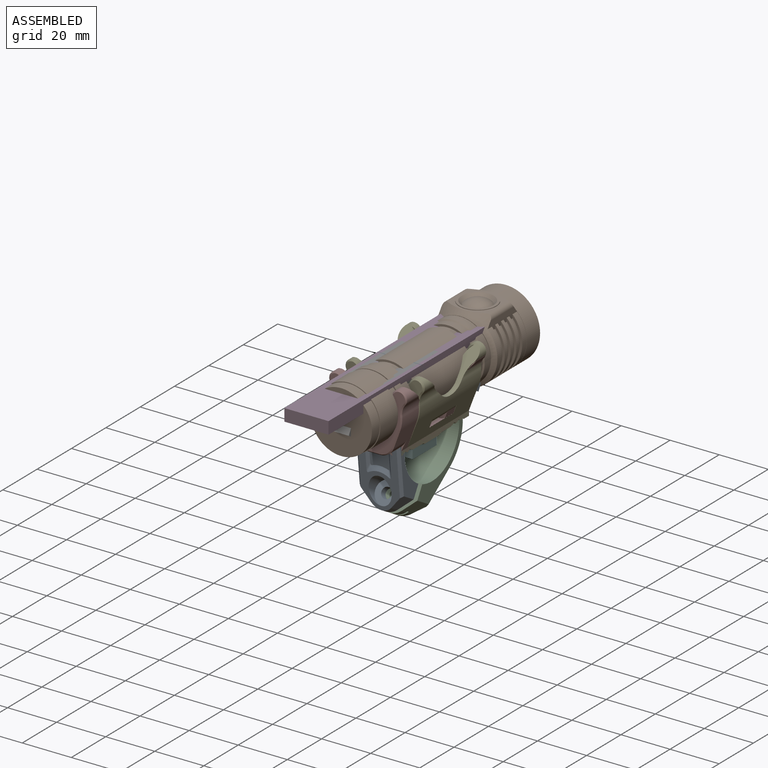
[diagram: assembled view]
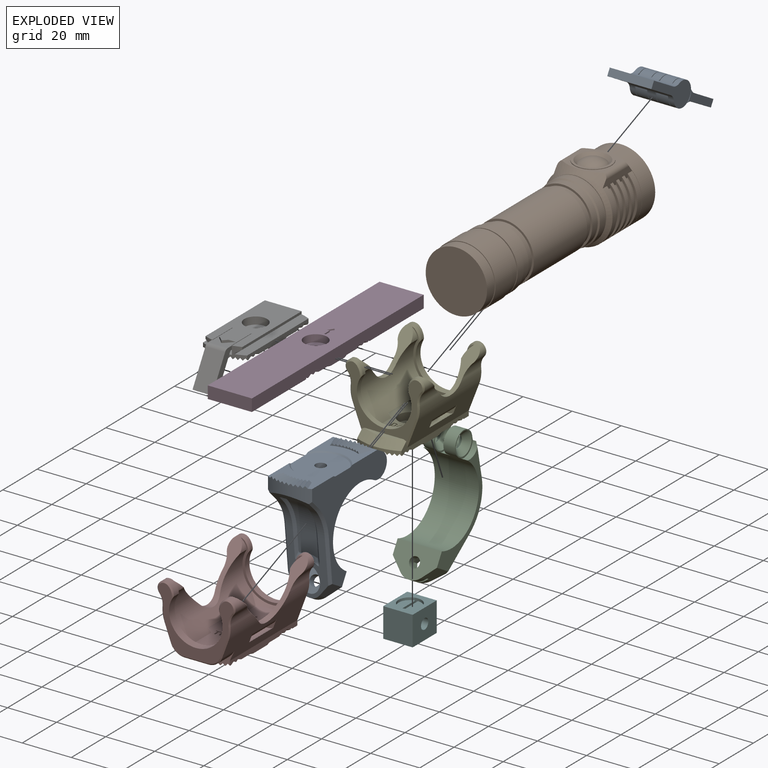
[diagram: exploded view]
GUIDED TOUR — FREECAD ASSEMBLY "bike-light-mount"

This assembly has 9 components, labeled P0..P8 below (a component is one placed body or linked part; the same part can appear more than once), held together by 0 modeled joints plus 30 derived contact edges. A joint is a constraint between two components; its type names the relative motion it leaves free:
  CONTACT — a derived adjacency edge — the two components touch in the source model (clearance under 2% of the assembly's diagonal); it is measured from the geometry, not a modeled constraint.
Axis/direction vectors are unit vectors and 'through' points are millimeter coordinates, both in the assembly's world frame.

MATES
  1. CONTACT "contact_0_1": P0 <-> P1, contact direction (0.000, 0.931, 0.364) through (4.00, -18.91, 6.86) mm (derived from contact, not a modeled constraint)
  2. CONTACT "contact_0_2": P0 <-> P2, contact direction (0.000, 1.000, 0.000) through (1.75, 7.95, 13.77) mm (derived from contact, not a modeled constraint)
  3. CONTACT "contact_0_3": P0 <-> P3, contact direction (0.000, -0.364, 0.931) through (-0.87, 9.79, 24.22) mm (derived from contact, not a modeled constraint)
  4. CONTACT "contact_0_4": P0 <-> P4, contact direction (0.000, 0.931, 0.364) through (-9.00, -15.10, 4.60) mm (derived from contact, not a modeled constraint)
  5. CONTACT "contact_0_6": P0 <-> P6, contact direction (0.000, -0.364, 0.931) through (4.33, -29.77, 24.22) mm (derived from contact, not a modeled constraint)
  6. CONTACT "contact_0_7": P0 <-> P7, contact direction (0.000, -1.000, 0.000) through (-8.97, -21.48, 11.72) mm (derived from contact, not a modeled constraint)
  7. CONTACT "contact_0_8": P0 <-> P8, contact direction (0.000, 0.931, 0.364) through (6.85, 14.72, 19.53) mm (derived from contact, not a modeled constraint)
  8. CONTACT "contact_1_2": P1 <-> P2, contact direction (0.000, -0.931, -0.364) through (-5.53, 18.06, 9.93) mm (derived from contact, not a modeled constraint)
  9. CONTACT "contact_1_3": P1 <-> P3, contact direction (0.000, -1.000, 0.000) through (4.46, -11.97, 29.09) mm (derived from contact, not a modeled constraint)
  10. CONTACT "contact_1_4": P1 <-> P4, contact direction (0.000, -0.931, -0.364) through (-9.86, -15.00, 24.11) mm (derived from contact, not a modeled constraint)
  11. CONTACT "contact_1_6": P1 <-> P6, contact direction (0.000, -1.000, 0.000) through (4.46, -11.97, 29.09) mm (derived from contact, not a modeled constraint)
  12. CONTACT "contact_1_7": P1 <-> P7, contact direction (0.000, -0.931, -0.364) through (10.64, -18.68, 25.22) mm (derived from contact, not a modeled constraint)
  13. CONTACT "contact_1_8": P1 <-> P8, contact direction (0.000, -0.931, -0.364) through (8.86, 28.84, 9.60) mm (derived from contact, not a modeled constraint)
  14. CONTACT "contact_2_3": P2 <-> P3, contact direction (0.000, -0.364, 0.931) through (-6.42, 9.44, 23.64) mm (derived from contact, not a modeled constraint)
  15. CONTACT "contact_2_4": P2 <-> P4, contact direction (0.000, -0.364, 0.931) through (9.00, 18.17, 0.05) mm (derived from contact, not a modeled constraint)
  16. CONTACT "contact_2_6": P2 <-> P6, contact direction (0.000, -0.364, 0.931) through (-2.23, 9.57, 23.64) mm (derived from contact, not a modeled constraint)
  17. CONTACT "contact_2_7": P2 <-> P7, contact direction (0.000, -1.000, 0.000) through (-9.00, 18.17, 0.05) mm (derived from contact, not a modeled constraint)
  18. CONTACT "contact_2_8": P2 <-> P8, contact direction (0.000, 0.000, 1.000) through (6.65, 15.13, 15.67) mm (derived from contact, not a modeled constraint)
  19. CONTACT "contact_3_4": P3 <-> P4, contact direction (1.000, 0.000, 0.000) through (9.14, -14.36, 23.68) mm (derived from contact, not a modeled constraint)
  20. CONTACT "contact_3_6": P3 <-> P6, contact direction (0.000, -1.000, 0.000) through (-9.00, 5.34, 25.12) mm (derived from contact, not a modeled constraint)
  21. CONTACT "contact_3_7": P3 <-> P7, contact direction (0.000, 0.364, -0.931) through (-9.14, -21.49, 24.36) mm (derived from contact, not a modeled constraint)
  22. CONTACT "contact_3_8": P3 <-> P8, contact direction (0.000, 1.000, 0.000) through (-6.42, 9.38, 23.62) mm (derived from contact, not a modeled constraint)
  23. CONTACT "contact_4_5": P4 <-> P5, contact direction (0.000, 0.000, -1.000) through (0.00, -4.65, 5.00) mm (derived from contact, not a modeled constraint)
  24. CONTACT "contact_4_6": P4 <-> P6, contact direction (-1.000, 0.000, 0.000) through (9.14, -14.36, 23.68) mm (derived from contact, not a modeled constraint)
  25. CONTACT "contact_4_7": P4 <-> P7, contact direction (0.000, -0.931, -0.364) through (-9.00, -4.36, -0.37) mm (derived from contact, not a modeled constraint)
  26. CONTACT "contact_4_8": P4 <-> P8, contact direction (0.000, 0.931, 0.364) through (10.12, 13.38, 22.09) mm (derived from contact, not a modeled constraint)
  27. CONTACT "contact_5_7": P5 <-> P7, contact direction (0.000, -0.364, 0.931) through (-4.65, -0.12, 5.00) mm (derived from contact, not a modeled constraint)
  28. CONTACT "contact_6_7": P6 <-> P7, contact direction (0.000, 0.364, -0.931) through (9.14, -21.49, 24.36) mm (derived from contact, not a modeled constraint)
  29. CONTACT "contact_6_8": P6 <-> P8, contact direction (0.000, 1.000, 0.000) through (1.26, 9.74, 23.65) mm (derived from contact, not a modeled constraint)
  30. CONTACT "contact_7_8": P7 <-> P8, contact direction (0.000, 0.931, 0.364) through (9.92, 14.10, 22.07) mm (derived from contact, not a modeled constraint)

ASSEMBLY ORDER
  1. P4 — the base component [order heuristic]
  2. P0 [order heuristic]
  3. P1 [order heuristic]
  4. P2 [order heuristic]
  5. P3 [order heuristic]
  6. P5 [order heuristic]
  7. P6 [order heuristic]
  8. P7 [order heuristic]
  9. P8 [order heuristic]
Order-tag legend:
  [order heuristic] — this assembly is geometrically interlocked (no collision-free removal order exists), so components are listed in mate-graph order; insertion feasibility is not verified.

Of the 9 components, 9 carry a construction recipe — the FreeCAD feature program (sketches with constraints, then the solid features that consume them) that regenerates the part from scratch, quoted from this document or from the linked companion document it references; the rest are supplied as boundary geometry only. The tour below walks the components in assembly order: each is shown spotlighted twice — in the assembled view, then in the exploded view, where a leader line traces a displaced component back to its assembled socket (components that stay in place when exploded have no leader line; saturated green if recipe-attached, orange if geometry-only; every other component desaturated gray) — followed by its recipe or geometry summary and the mates that hold it.
NOTE — this tour is split across 2 documents so each fits a 32k-token context. This is document 1: the component sections continue in the remaining 1 document, each repeating the header above.
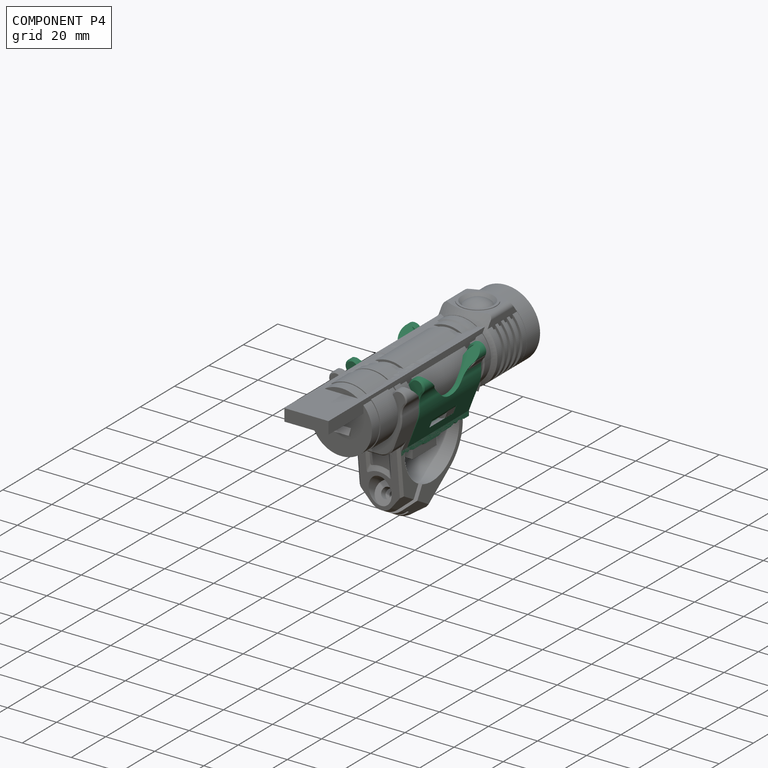
[diagram: component P4 — assembled]
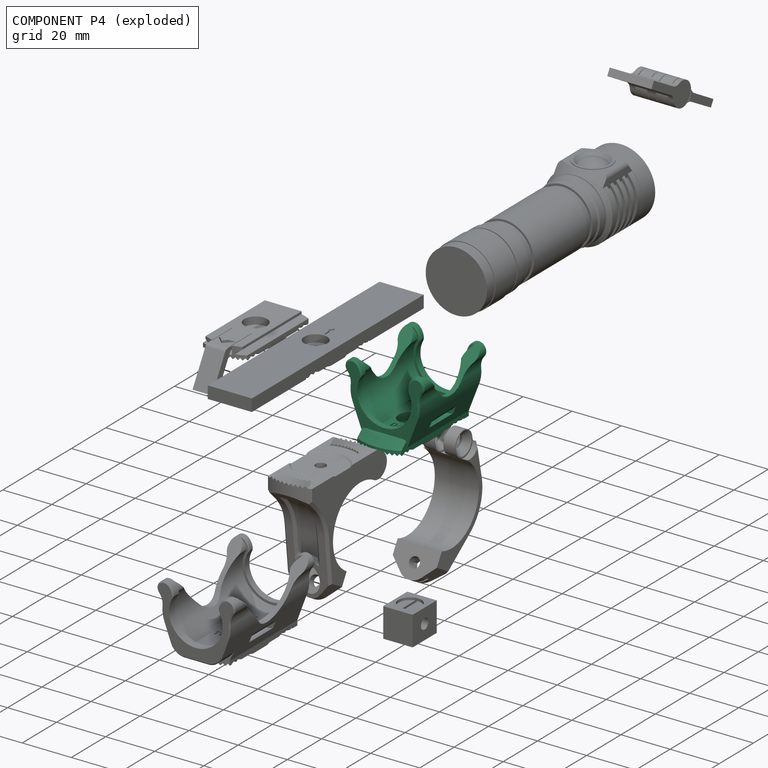
[diagram: component P4 — exploded]
COMPONENT P4 — recipe-attached ("Mounting plate - D4", modeled in this document).
Held by: resting contact with P0 (derived edge); resting contact with P1 (derived edge); resting contact with P2 (derived edge); resting contact with P3 (derived edge); resting contact with P5 (derived edge); resting contact with P6 (derived edge); resting contact with P7 (derived edge); resting contact with P8 (derived edge).
Construction recipe (the document's own serialized feature program — sketch geometry with constraints, then the solid features built on it; lengths are millimeters unless a unit is written):

FEATURE [PartDesign::CoordinateSystem] LCS_9  label="LCS_Mount_D4_mount"
  AttacherType = Attacher::AttachEngine3D
  AttachmentOffset = pos=(0,0,-0.5) rot=(0,0,1;0rad)
  MapMode = 5
  Placement = pos=(0,0,-0.5) rot=(0,0,1;0rad)
  Support = -> [XY_Plane010]
FEATURE [PartDesign::CoordinateSystem] LCS_10  label="LCS_Mount_D4_screw"
  AttacherType = Attacher::AttachEngine3D
  AttachmentOffset = pos=(0,0,2) rot=(0,0,1;0rad)
  MapMode = 5
  Placement = pos=(0,0,2) rot=(0,0,1;0rad)
  Support = -> [XY_Plane010]
FEATURE [PartDesign::FeatureBase] BaseFeature
  BaseFeature = -> Body006
FEATURE [Sketcher::SketchObject] Sketch036
  AttachmentOffset = pos=(0,0,-22) rot=(0,0,1;0rad)
  MapMode = 5
  Placement = pos=(0,22,4.9e-15) rot=(1,0,0;1.5708rad)
  Support = -> [XZ_Plane010]
  sketch-geometry (27):
    g0: LineSegment StartX=9 StartY=2 StartZ=0 EndX=13.2311 EndY=12.989 EndZ=0
    g1: LineSegment StartX=-9 StartY=2 StartZ=0 EndX=-13.2311 EndY=12.989 EndZ=0
    g2: ArcOfCircle CenterX=0 CenterY=18.25 CenterZ=0 NormalX=0 NormalY=0 NormalZ=1 AngleXU=0 Radius=11.25 StartAngle=3.66519 EndAngle=5.75959
    g3: ArcOfCircle CenterX=-0.866025 CenterY=17.75 CenterZ=0 NormalX=0 NormalY=0 NormalZ=1 AngleXU=0 Radius=10.25 StartAngle=2.5334 EndAngle=3.66519
    g4: ArcOfCircle CenterX=0.866025 CenterY=17.75 CenterZ=0 NormalX=0 NormalY=0 NormalZ=1 AngleXU=0 Radius=10.25 StartAngle=5.75959 EndAngle=6.89138
    g5: LineSegment [constr] StartX=0 StartY=0 StartZ=0 EndX=0 EndY=7 EndZ=0
    g6: ArcOfCircle CenterX=0.866025 CenterY=17.75 CenterZ=0 NormalX=0 NormalY=0 NormalZ=1 AngleXU=0 Radius=13.25 StartAngle=5.91565 EndAngle=6.39204
    g7: ArcOfCircle CenterX=-0.866025 CenterY=17.75 CenterZ=0 NormalX=0 NormalY=0 NormalZ=1 AngleXU=0 Radius=13.25 StartAngle=3.03274 EndAngle=3.50913
    g8: LineSegment [constr] StartX=-9.74279 StartY=12.625 StartZ=0 EndX=9.74279 EndY=12.625 EndZ=0
    g9: LineSegment [constr] StartX=-13.2311 StartY=12.989 StartZ=0 EndX=-10.4315 EndY=14.067 EndZ=0
    g10: LineSegment [constr] StartX=-9.27803 StartY=23.6067 StartZ=0 EndX=9.27803 EndY=23.6067 EndZ=0
    g11: LineSegment [constr] StartX=0 StartY=18.25 StartZ=0 EndX=-9.74279 EndY=12.625 EndZ=0
    g12: LineSegment StartX=-9 StartY=2 StartZ=0 EndX=-9 EndY=5 EndZ=0
    g13: LineSegment StartX=-9 StartY=5 StartZ=0 EndX=9 EndY=5 EndZ=0
    g14: LineSegment StartX=9 StartY=5 StartZ=0 EndX=9 EndY=2 EndZ=0
    g15: LineSegment [constr] StartX=-14.0376 StartY=19.1894 StartZ=0 EndX=-11.0554 EndY=18.8635 EndZ=0
    g16: LineSegment [constr] StartX=14.0376 StartY=19.1894 StartZ=0 EndX=11.0554 EndY=18.8635 EndZ=0
    g17: LineSegment [constr] StartX=-9.27803 StartY=23.6067 StartZ=0 EndX=0 EndY=18.25 EndZ=0
    g18: LineSegment [constr] StartX=-11 StartY=27.7639 StartZ=0 EndX=11 EndY=27.7639 EndZ=0
    g19: ArcOfCircle CenterX=-15.1572 CenterY=23.6067 CenterZ=0 NormalX=0 NormalY=0 NormalZ=1 AngleXU=0 Radius=5.87917 StartAngle=0 EndAngle=0.785398
    g20: ArcOfCircle CenterX=-13.1213 CenterY=25.6426 CenterZ=0 NormalX=0 NormalY=0 NormalZ=1 AngleXU=0 Radius=3 StartAngle=0.785398 EndAngle=3.84208
    g21: LineSegment [constr] StartX=-11 StartY=27.7639 StartZ=0 EndX=-6.8428 EndY=23.6067 EndZ=0
    g22: ArcOfCircle CenterX=-20.0021 CenterY=19.8413 CenterZ=0 NormalX=0 NormalY=0 NormalZ=1 AngleXU=0 Radius=6 StartAngle=6.17433 EndAngle=6.98367
    g23: Circle [constr] CenterX=0 CenterY=18.25 CenterZ=0 NormalX=0 NormalY=0 NormalZ=1 AngleXU=0 Radius=11.25
    g24: ArcOfCircle CenterX=15.1572 CenterY=23.6067 CenterZ=0 NormalX=0 NormalY=0 NormalZ=1 AngleXU=0 Radius=5.87917 StartAngle=2.3562 EndAngle=3.14159
    g25: ArcOfCircle CenterX=13.1213 CenterY=25.6426 CenterZ=0 NormalX=0 NormalY=0 NormalZ=1 AngleXU=0 Radius=3 StartAngle=5.58271 EndAngle=8.63938
    g26: ArcOfCircle CenterX=20.0021 CenterY=19.8413 CenterZ=0 NormalX=0 NormalY=0 NormalZ=1 AngleXU=0 Radius=6 StartAngle=2.44111 EndAngle=3.25045
  constraints (84):
    c: Symmetric(g1,g0,g-2)
    c: DistanceX(g1,g0) = 18
    c: DistanceY(g-1,g1) = 2
    c: PointOnObject(g2,g-2)
    c: Radius(g2) = 11.25
    c: Coincident(g3,g2)
    c: Coincident(g4,g2)
    c: Tangent(g4,g2)
    c: Tangent(g2,g3)
    c: PointOnObject(g5,g2)
    c: Vertical(g5)
    c: DistanceY(g-1,g5) = 7
    c: Equal(g4,g3)
    c: Radius(g3) = 10.25
    c: Coincident(g6,g0)
    c: Coincident(g7,g1)
    c: Tangent(g7,g1)
    c: Tangent(g0,g6)
    c: Coincident(g8,g2)
    c: Coincident(g8,g2)
    c: Horizontal(g8)
    c: PointOnObject(g9,g1)
    c: PointOnObject(g9,g3)
    c: Perpendicular(g3,g9)
    c: Perpendicular(g1,g9)
    c: Horizontal(g10)
    c: Equal(g0,g1)
    c: Equal(g6,g7)
    c: Coincident(g11,g2)
    c: Coincident(g11,g2)
    c: Angle(g8,g11) = 0.523599
    c: Coincident(g12,g1)
    c: Vertical(g12)
    c: Coincident(g13,g12)
    c: Horizontal(g13)
    c: Coincident(g14,g13)
    c: Coincident(g14,g0)
    c: Vertical(g14)
    c: DistanceY(g-1,g12) = 5
    c: Coincident(g5,g-1)
    c: Coincident(g3,g10)
    c: Coincident(g15,g7)
    c: PointOnObject(g15,g3)
    c: Perpendicular(g3,g15)
    c: Distance(g15) = 3
    c: Coincident(g10,g4)
    c: Coincident(g16,g6)
    c: PointOnObject(g16,g4)
    c: Perpendicular(g4,g16)
    c: Equal(g16,g15)
    c: Coincident(g7,g3)
    c: Coincident(g17,g3)
    c: Coincident(g17,g2)
    c: Angle(g17,g10) = 0.523599
    c: DistanceX(g10,g10) = 18.5561
    c: Coincident(g19,g3)
    c: Perpendicular(g19,g10)
    c: Coincident(g20,g19)
    c: Tangent(g19,g20)
    c: Coincident(g18,g19)
    c: PointOnObject(g21,g10)
    c: Tangent(g21,g19) = 1.5708
    c: Angle(g21,g18) = 0.785398
    c: Coincident(g22,g20)
    c: Coincident(g22,g7)
    c: Tangent(g22,g7)
    c: Radius(g20) = 3
    c: DistanceX(g18,g18) = 22
    c: Coincident(g23,g2)
    c: PointOnObject(g2,g23)
    c: Coincident(g24,g4)
    c: Perpendicular(g24,g10)
    c: Symmetric(g18,g19,g-2)
    c: Coincident(g25,g24)
    c: Coincident(g26,g25)
    c: Coincident(g26,g6)
    c: Tangent(g26,g6)
    c: Tangent(g25,g24)
    c: Tangent(g26,g25)
    c: Equal(g25,g20)
    c: Coincident(g24,g18)
    c: Tangent(g22,g20)
    c: Radius(g22) = 6
    c: Equal(g22,g26)
FEATURE [PartDesign::Pad] Pad010
  BaseFeature = -> BaseFeature
  Direction = (1,1,1)
  Length = 37
  Length2 = 100
  Profile = -> Sketch036
  Type = 0
FEATURE [Sketcher::SketchObject] Sketch038
  MapMode = 5
  Support = -> [XY_Plane010]
  sketch-geometry (4):
    g0: LineSegment StartX=-9 StartY=22 StartZ=0 EndX=9 EndY=22 EndZ=0
    g1: LineSegment StartX=9 StartY=22 StartZ=0 EndX=9 EndY=50 EndZ=0
    g2: LineSegment StartX=9 StartY=50 StartZ=0 EndX=-9 EndY=50 EndZ=0
    g3: LineSegment StartX=-9 StartY=50 StartZ=0 EndX=-9 EndY=22 EndZ=0
  constraints (9):
    c: Coincident(g0,g1)
    c: Coincident(g1,g2)
    c: Coincident(g2,g3)
    c: Coincident(g3,g0)
    c: Horizontal(g0)
    c: Vertical(g1)
    c: Vertical(g3)
    c: Symmetric(g1,g2,g-2)
    c: DistanceY(g-1,g2) = 50
FEATURE [PartDesign::Pocket] Pocket015
  BaseFeature = -> Pad010
  Length = 5
  Length2 = 100
  Profile = -> Sketch038
  Refine = true
  Reversed = true
  Type = 1
FEATURE [Sketcher::SketchObject] Sketch039
  MapMode = 5
  Support = -> [XY_Plane010]
  sketch-geometry (4):
    g0: ArcOfCircle CenterX=0 CenterY=0 CenterZ=0 NormalX=0 NormalY=0 NormalZ=1 AngleXU=0 Radius=20 StartAngle=4.24562 EndAngle=5.17915
    g1: LineSegment StartX=-9 StartY=-17.8606 StartZ=0 EndX=-9 EndY=-50 EndZ=0
    g2: LineSegment StartX=-9 StartY=-50 StartZ=0 EndX=9 EndY=-50 EndZ=0
    g3: LineSegment StartX=9 StartY=-50 StartZ=0 EndX=9 EndY=-17.8606 EndZ=0
  constraints (11):
    c: Coincident(g0,g-1)
    c: Coincident(g1,g0)
    c: Vertical(g1)
    c: Coincident(g2,g1)
    c: Coincident(g3,g2)
    c: Coincident(g3,g0)
    c: Symmetric(g2,g1,g-2)
    c: DistanceX(g2,g2) = 18
    c: Radius(g0) = 20
    c: Equal(g1,g3)
    c: DistanceY(g1,g0) = 50
FEATURE [PartDesign::Pocket] Pocket016
  BaseFeature = -> Pocket015
  Length = 5
  Length2 = 100
  Profile = -> Sketch039
  Reversed = true
  Type = 1
FEATURE [Sketcher::SketchObject] Sketch041
  AttachmentOffset = pos=(0,0,18.5) rot=(0,0,1;0rad)
  ExternalGeometry = -> [Sketch036]
  MapMode = 2
  Placement = pos=(0,3.5,8e-16) rot=(1,0,0;1.5708rad)
  Support = -> [Sketch036]
  expr: .AttachmentOffset.Base.z = <<Pad010>>.Length / 2
  sketch-geometry (8):
    g0: LineSegment StartX=-7.9865 StartY=5 StartZ=0 EndX=7.9865 EndY=5 EndZ=0
    g1: LineSegment StartX=-7.9865 StartY=6.5 StartZ=0 EndX=7.98651 EndY=6.5 EndZ=0
    g2: ArcOfCircle CenterX=7.98651 CenterY=10.5 CenterZ=0 NormalX=0 NormalY=0 NormalZ=1 AngleXU=0 Radius=5.5 StartAngle=4.71239 EndAngle=5.15919
    g3: ArcOfCircle CenterX=7.98651 CenterY=10.5 CenterZ=0 NormalX=0 NormalY=0 NormalZ=1 AngleXU=0 Radius=4 StartAngle=4.71239 EndAngle=5.91565
    g4: LineSegment StartX=10.363 StartY=5.53992 StartZ=0 EndX=11.7194 EndY=9.06274 EndZ=0
    g5: ArcOfCircle CenterX=-7.9865 CenterY=10.5 CenterZ=0 NormalX=0 NormalY=0 NormalZ=1 AngleXU=0 Radius=5.50002 StartAngle=4.26558 EndAngle=4.71239
    g6: ArcOfCircle CenterX=-7.9865 CenterY=10.5 CenterZ=0 NormalX=0 NormalY=0 NormalZ=1 AngleXU=0 Radius=4.00002 StartAngle=3.50913 EndAngle=4.71239
    g7: LineSegment StartX=-11.7194 StartY=9.06274 StartZ=0 EndX=-10.363 EndY=5.53992 EndZ=0
  constraints (25):
    c: PointOnObject(g0,g-4)
    c: Symmetric(g0,g0,g-2)
    c: Horizontal(g1)
    c: DistanceY(g0,g1) = 1.5
    c: Coincident(g2,g0)
    c: PointOnObject(g2,g-3)
    c: Coincident(g3,g2)
    c: Coincident(g3,g1)
    c: Tangent(g3,g1)
    c: Tangent(g2,g0)
    c: Coincident(g4,g2)
    c: Coincident(g4,g3)
    c: PointOnObject(g3,g-3)
    c: Tangent(g3,g-3)
    c: Coincident(g5,g0)
    c: Coincident(g6,g5)
    c: Coincident(g6,g1)
    c: Tangent(g5,g0)
    c: Tangent(g6,g1)
    c: Radius(g3) = 4
    c: PointOnObject(g6,g-5)
    c: Coincident(g7,g6)
    c: Coincident(g7,g5)
    c: PointOnObject(g5,g-5)
    c: Tangent(g6,g-5)
FEATURE [Sketcher::SketchObject] Sketch045
  ExternalGeometry = -> [Sketch036]
  MapMode = 5
  Placement = pos=(0,0,0) rot=(0.57735,0.57735,0.57735;2.0944rad)
  Support = -> [YZ_Plane010]
  expr: Constraints[13] = 2.8mm - <<Chamfer013>>.Size
  expr: Constraints[10] = <<Pocket017>>.Length + <<Chamfer012>>.Size + <<Chamfer013>>.Size
  sketch-geometry (5):
    g0: LineSegment StartX=-12.7 StartY=28.6426 StartZ=0 EndX=-2.10688 EndY=18.0494 EndZ=0
    g1: LineSegment StartX=9.20688 StartY=18.0494 StartZ=0 EndX=19.8 EndY=28.6426 EndZ=0
    g2: LineSegment StartX=-12.7 StartY=28.6426 StartZ=0 EndX=19.8 EndY=28.6426 EndZ=0
    g3: ArcOfCircle CenterX=3.55 CenterY=23.7063 CenterZ=0 NormalX=0 NormalY=0 NormalZ=1 AngleXU=0 Radius=8 StartAngle=3.92699 EndAngle=5.49779
    g4: LineSegment [constr] StartX=19.8 StartY=28.6426 StartZ=0 EndX=22 EndY=28.6426 EndZ=0
  constraints (15):
    c: Coincident(g2,g0)
    c: Coincident(g2,g1)
    c: Horizontal(g2)
    c: Coincident(g3,g0)
    c: Coincident(g3,g1)
    c: Tangent(g3,g1)
    c: Tangent(g3,g0)
    c: Radius(g3) = 8
    c: Perpendicular(g0,g1)
    c: Equal(g1,g0)
    c: DistanceX(g2,g2) = 32.5
    c: Coincident(g4,g1)
    c: Horizontal(g4)
    c: DistanceX(g4,g4) = 2.2
    c: Coincident(g4,g-3)
FEATURE [Sketcher::SketchObject] Sketch046
  AttachmentOffset = pos=(0,0,2.8) rot=(0,0,1;0rad)
  ExternalGeometry = -> [Sketch036]
  MapMode = 2
  Placement = pos=(0,19.2,4.3e-15) rot=(1,0,0;1.5708rad)
  Support = -> [Sketch036]
  expr: Constraints[2] = <<Dimensions>>.m4_washer_slot_diameter + 1
  sketch-geometry (16):
    g0: LineSegment StartX=-5.15 StartY=5 StartZ=0 EndX=5.15 EndY=5 EndZ=0
    g1: ArcOfCircle CenterX=0 CenterY=18.25 CenterZ=0 NormalX=0 NormalY=0 NormalZ=1 AngleXU=0 Radius=12.25 StartAngle=3.66519 EndAngle=3.80954
    g2: ArcOfCircle CenterX=0 CenterY=18.25 CenterZ=0 NormalX=0 NormalY=0 NormalZ=1 AngleXU=0 Radius=12.25 StartAngle=5.61523 EndAngle=5.75959
    g3: LineSegment StartX=-9.61737 StartY=10.6626 StartZ=0 EndX=-5.15 EndY=5 EndZ=0
    g4: LineSegment StartX=9.61737 StartY=10.6626 StartZ=0 EndX=5.15 EndY=5 EndZ=0
    g5: ArcOfCircle CenterX=-0.866025 CenterY=17.75 CenterZ=0 NormalX=0 NormalY=0 NormalZ=1 AngleXU=0 Radius=11.25 StartAngle=2.56331 EndAngle=3.66519
    g6: ArcOfCircle CenterX=0.866025 CenterY=17.75 CenterZ=0 NormalX=0 NormalY=0 NormalZ=1 AngleXU=0 Radius=11.25 StartAngle=5.75959 EndAngle=6.86147
    g7: LineSegment [constr] StartX=-12.116 StartY=17.75 StartZ=0 EndX=-11.116 EndY=17.75 EndZ=0
    g8: ArcOfCircle CenterX=-15.1572 CenterY=23.6067 CenterZ=0 NormalX=0 NormalY=0 NormalZ=1 AngleXU=0 Radius=4.87917 StartAngle=0.0599696 EndAngle=0.785398
    g9: LineSegment StartX=-11.7071 StartY=27.0568 StartZ=0 EndX=-14.7071 EndY=30.0568 EndZ=0
    g10: LineSegment [constr] StartX=-11.7071 StartY=27.0568 StartZ=0 EndX=-11 EndY=27.7639 EndZ=0
    g11: ArcOfCircle CenterX=15.1572 CenterY=23.6067 CenterZ=0 NormalX=0 NormalY=0 NormalZ=1 AngleXU=0 Radius=4.87917 StartAngle=2.3562 EndAngle=3.08162
    g12: LineSegment [constr] StartX=11 StartY=27.7639 StartZ=0 EndX=11.7071 EndY=27.0568 EndZ=0
    g13: LineSegment StartX=11.7071 StartY=27.0568 StartZ=0 EndX=14.7071 EndY=30.0568 EndZ=0
    g14: LineSegment StartX=-14.7071 StartY=30.0568 StartZ=0 EndX=14.7071 EndY=30.0568 EndZ=0
    g15: LineSegment [constr] StartX=-10.6088 StartY=12.125 StartZ=0 EndX=-9.74279 EndY=12.625 EndZ=0
  constraints (45):
    c: PointOnObject(g0,g-3)
    c: Symmetric(g0,g0,g-2)
    c: DistanceX(g0,g0) = 10.3
    c: Coincident(g2,g1)
    c: Coincident(g3,g1)
    c: Coincident(g3,g0)
    c: Coincident(g4,g2)
    c: Coincident(g4,g0)
    c: Tangent(g2,g4)
    c: Tangent(g1,g3)
    c: Equal(g3,g4)
    c: Coincident(g1,g-5)
    c: Coincident(g5,g-4)
    c: Coincident(g5,g1)
    c: Coincident(g6,g-6)
    c: Coincident(g6,g2)
    c: Tangent(g2,g6)
    c: PointOnObject(g7,g5)
    c: PointOnObject(g7,g-4)
    c: Horizontal(g7)
    c: Perpendicular(g5,g7)
    c: DistanceX(g7,g7) = 1
    c: Coincident(g8,g-8)
    c: Coincident(g8,g5)
    c: Coincident(g9,g8)
    c: Tangent(g9,g8)
    c: Coincident(g10,g8)
    c: Coincident(g10,g-8)
    c: Perpendicular(g8,g10)
    c: Coincident(g11,g-7)
    c: Coincident(g11,g6)
    c: Coincident(g12,g-7)
    c: Coincident(g12,g11)
    c: Perpendicular(g11,g12)
    c: Coincident(g13,g11)
    c: Tangent(g13,g11)
    c: Coincident(g14,g9)
    c: Coincident(g14,g13)
    c: Horizontal(g14)
    c: DistanceY(g9,g9) = 3
    c: Coincident(g15,g1)
    c: Coincident(g15,g-5)
    c: Perpendicular(g5,g15)
    c: Equal(g10,g7)
    c: Equal(g12,g10)
FEATURE [PartDesign::Line] DatumLine006
  AttacherType = Attacher::AttachEngineLine
  Length = 20
  MapMode = 19
  Placement = pos=(9e-16,22,18.25) rot=(-0.186157,-0.694747,0.694747;3.50969rad)
  ResizeMode = 0
  Support = -> [Sketch036]
FEATURE [Sketcher::SketchObject] Sketch047
  ExternalGeometry = -> [Sketch036]
  MapMode = 5
  Placement = pos=(0,0,0) rot=(0.57735,0.57735,0.57735;2.0944rad)
  Support = -> [YZ_Plane010]
  expr: Constraints[1] = <<Pocket017>>.Length
  sketch-geometry (7):
    g0: LineSegment [constr] StartX=19.2 StartY=6 StartZ=0 EndX=-11.8 EndY=6 EndZ=0
    g1: LineSegment StartX=-11.8 StartY=6 StartZ=0 EndX=-9.3 EndY=3.5 EndZ=0
    g2: LineSegment StartX=-9.3 StartY=3.5 StartZ=0 EndX=-11.8 EndY=3.5 EndZ=0
    g3: LineSegment StartX=-11.8 StartY=3.5 StartZ=0 EndX=-11.8 EndY=6 EndZ=0
    g4: LineSegment StartX=19.2 StartY=6 StartZ=0 EndX=16.7 EndY=3.5 EndZ=0
    g5: LineSegment StartX=16.7 StartY=3.5 StartZ=0 EndX=19.2 EndY=3.5 EndZ=0
    g6: LineSegment StartX=19.2 StartY=3.5 StartZ=0 EndX=19.2 EndY=6 EndZ=0
  constraints (20):
    c: Horizontal(g0)
    c: DistanceX(g0,g0) = 31
    c: Coincident(g2,g1)
    c: Horizontal(g2)
    c: Coincident(g3,g2)
    c: Coincident(g3,g1)
    c: Vertical(g3)
    c: Equal(g2,g3)
    c: DistanceY(g3,g3) = 2.5
    c: Coincident(g0,g1)
    c: Coincident(g4,g0)
    c: Coincident(g5,g4)
    c: Coincident(g6,g5)
    c: Coincident(g6,g4)
    c: Vertical(g6)
    c: Horizontal(g5)
    c: Equal(g5,g6)
    c: Equal(g6,g3)
    c: DistanceX(g4,g-3) = 2.8
    c: DistanceY(g4,g-3) = 1
FEATURE [PartDesign::Chamfer] Chamfer002
  Angle = 45
  Base = -> Pocket016 [Edge63]
  BaseFeature = -> Pocket016
  ChamferType = 0
  FlipDirection = false
  Size = 3
  Size2 = 1
  SupportTransform = false
FEATURE [PartDesign::Pocket] Pocket017
  BaseFeature = -> Chamfer002
  Length = 31
  Length2 = 100
  Profile = -> Sketch046
  Refine = true
  Reversed = true
  Type = 0
  expr: Length = 31
FEATURE [PartDesign::CoordinateSystem] LCS_12  label="LCS_Mount_D4_front_clip"
  AttacherType = Attacher::AttachEngine3D
  MapMode = 11
  Placement = pos=(9e-16,22,18.25) rot=(0.774597,0.447214,-0.447214;1.82348rad)
  Support = -> [Sketch036]
FEATURE [Part::Part2DObjectPython] ShapeString  # Draft 2D object (typed FeaturePython)
  AttachmentOffset = pos=(-2.5,-8.75,0) rot=(0,0,1;0rad)
  FontFile = <path>
  MapMode = 5
  Placement = pos=(-2.5,-8.75,5) rot=(0,0,1;0rad)
  Size = 3
  String = D4
  Support = -> [BaseFeature]
  Tracking = 0
FEATURE [PartDesign::Chamfer] Chamfer012
  Angle = 45
  Base = -> Pocket017 [Edge304,Edge313,Edge298]
  BaseFeature = -> Pocket017
  ChamferType = 0
  FlipDirection = false
  Size = 0.9
  Size2 = 1
  SupportTransform = false
FEATURE [PartDesign::Chamfer] Chamfer013
  Angle = 45
  Base = -> Chamfer012 [Edge7,Edge48,Edge52,Edge37,Edge38,Edge3,Edge29,Edge54,Edge58]
  BaseFeature = -> Chamfer012
  ChamferType = 0
  FlipDirection = false
  Size = 0.6
  Size2 = 1
  SupportTransform = false
FEATURE [PartDesign::Pocket] Pocket018
  BaseFeature = -> Chamfer013
  Length = 5
  Length2 = 100
  Midplane = true
  Profile = -> Sketch045
  Type = 1
FEATURE [PartDesign::Pocket] Pocket019
  BaseFeature = -> Pocket018
  Length = 14
  Length2 = 100
  Midplane = true
  Profile = -> Sketch041
  Refine = true
  Type = 0
FEATURE [PartDesign::Revolution] Revolution001
  Angle = 105
  Axis = (0,-1,-3e-16)
  Base = (9e-16,22,18.25)
  BaseFeature = -> Pocket019
  Midplane = true
  Profile = -> Sketch047
  ReferenceAxis = -> DatumLine006
FEATURE [PartDesign::Pocket] Pocket028
  BaseFeature = -> Revolution001
  Length = 0.5
  Length2 = 100
  Profile = -> ShapeString
  Type = 0
FEATURE [PartDesign::Body] Body007  label="Mounting plate - D4"
  BaseFeature = -> Body006
  Group = -> [BaseFeature,Sketch036,Pad010,Sketch038,Pocket015,Sketch039,Pocket016,Chamfer002,Pocket017,Chamfer012,Chamfer013,Sketch041,Sketch045,Sketch046,Pocket018,Pocket019,DatumLine006,Sketch047,Revolution001,Pocket028,LCS_9,LCS_10,LCS_12,ShapeString]
  Origin = -> Origin010
  Tip = -> Pocket028
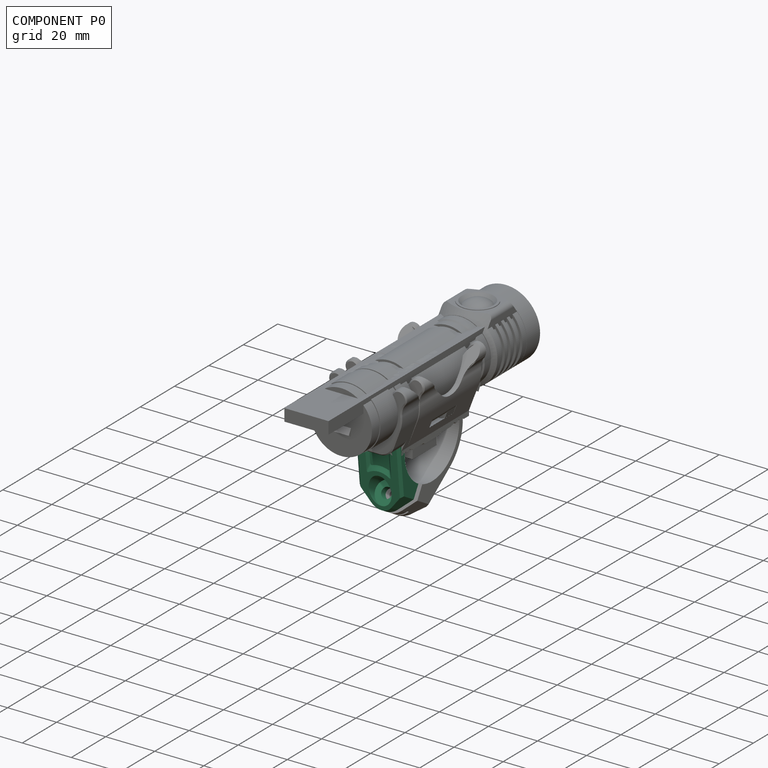
[diagram: component P0 — assembled]
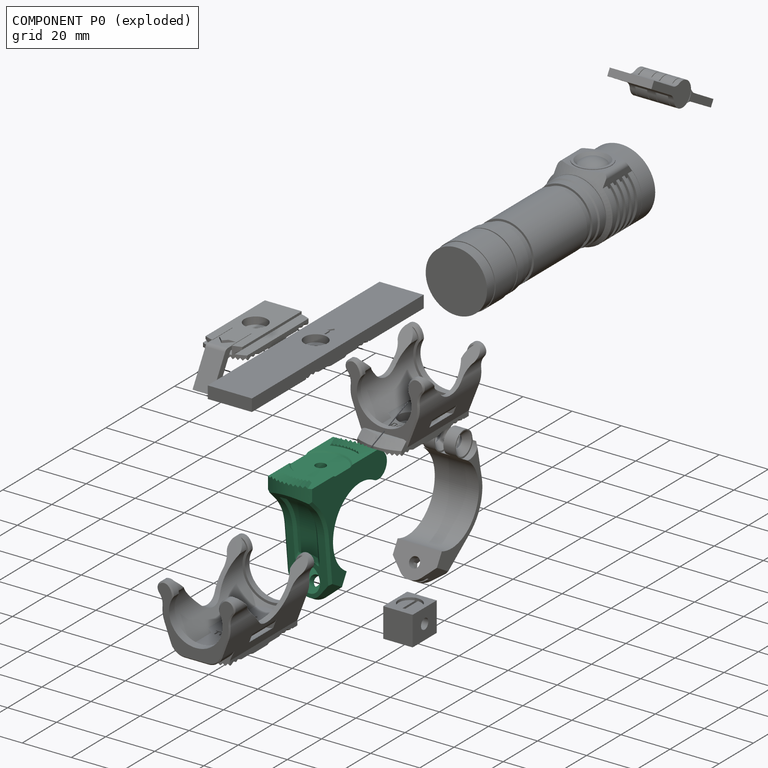
[diagram: component P0 — exploded]
COMPONENT P0 — recipe-attached ("Upper clamp", modeled in this document).
Held by: resting contact with P1 (derived edge); resting contact with P2 (derived edge); resting contact with P3 (derived edge); resting contact with P4 (derived edge); resting contact with P6 (derived edge); resting contact with P7 (derived edge); resting contact with P8 (derived edge).
Construction recipe (the document's own serialized feature program — sketch geometry with constraints, then the solid features built on it; lengths are millimeters unless a unit is written):

FEATURE [Sketcher::SketchObject] Sketch
  MapMode = 5
  Placement = pos=(0,0,0) rot=(0.57735,0.57735,0.57735;2.0944rad)
  Support = -> [YZ_Plane]
  expr: Constraints[1] = <<Dimensions>>.clamp_diameter
  expr: Constraints[13] = <<Dimensions>>.m4_washer_slot_diameter / 2
  sketch-geometry (16):
    g0: ArcOfCircle CenterX=0 CenterY=0 CenterZ=0 NormalX=0 NormalY=0 NormalZ=1 AngleXU=0 Radius=15.9 StartAngle=1.0472 EndAngle=4.18879
    g1: ArcOfCircle CenterX=-41.1036 CenterY=0 CenterZ=0 NormalX=0 NormalY=0 NormalZ=1 AngleXU=0 Radius=21.9651 StartAngle=0.107769 EndAngle=0.785398
    g2: LineSegment StartX=-7.95 StartY=-13.7698 StartZ=0 EndX=-13.95 EndY=-24.1621 EndZ=0
    g3: LineSegment StartX=-19.2659 StartY=2.36257 StartZ=0 EndX=-16.5592 EndY=-22.6557 EndZ=0
    g4: LineSegment StartX=-13.95 StartY=-24.1621 StartZ=0 EndX=-16.5592 EndY=-22.6557 EndZ=0
    g5: LineSegment [constr] StartX=-10.95 StartY=-18.966 StartZ=0 EndX=-43.8 EndY=0 EndZ=0
    g6: LineSegment StartX=-30.2203 StartY=20.1801 StartZ=0 EndX=-30.2203 EndY=24.1801 EndZ=0
    g7: LineSegment [constr] StartX=-16.7391 StartY=-20.993 StartZ=0 EndX=-13.275 EndY=-22.993 EndZ=0
    g8: ArcOfCircle CenterX=10.45 CenterY=18.0999 CenterZ=0 NormalX=0 NormalY=0 NormalZ=1 AngleXU=0 Radius=5 StartAngle=4.18879 EndAngle=7.34986
    g9: LineSegment [constr] StartX=10.45 StartY=18.0999 StartZ=0 EndX=-7.95 EndY=-13.7698 EndZ=0
    g10: LineSegment StartX=-30.2203 StartY=24.1801 StartZ=0 EndX=9.77968 EndY=24.1801 EndZ=0
    g11: LineSegment [constr] StartX=-10.2203 StartY=12.1801 StartZ=0 EndX=-10.2203 EndY=24.1801 EndZ=0
    g12: LineSegment [constr] StartX=-10.2203 StartY=12.1801 StartZ=0 EndX=0 EndY=0 EndZ=0
    g13: LineSegment StartX=9.77968 StartY=24.1801 StartZ=0 EndX=12.8652 EndY=22.4779 EndZ=0
    g14: LineSegment StartX=-30.2203 StartY=20.1801 StartZ=0 EndX=-25.5719 EndY=15.5317 EndZ=0
    g15: LineSegment [constr] StartX=-18.7904 StartY=-2.03289 StartZ=0 EndX=-15.8078 EndY=-1.71021 EndZ=0
  constraints (49):
    c: Coincident(g0,g-1)
    c: Diameter(g0) = 31.8
    c: Coincident(g2,g0)
    c: Coincident(g4,g2)
    c: Coincident(g4,g3)
    c: Perpendicular(g2,g4)
    c: Distance(g2) = 12
    c: Tangent(g1,g3) = 1.5708
    c: Symmetric(g2,g0,g5)
    c: Vertical(g6)
    c: PointOnObject(g7,g3)
    c: PointOnObject(g7,g2)
    c: Perpendicular(g2,g7)
    c: Distance(g7,g5) = 4.65
    c: Distance(g7) = 4
    c: Coincident(g8,g0)
    c: Radius(g8) = 5
    c: Tangent(g8,g0)
    c: Coincident(g9,g8)
    c: Coincident(g9,g0)
    c: PointOnObject(g0,g9)
    c: Angle(g9,g-2) = 0.523599
    c: Parallel(g2,g9)
    c: Coincident(g10,g6)
    c: Horizontal(g10)
    c: PointOnObject(g11,g0)
    c: Coincident(g12,g11)
    c: Coincident(g12,g0)
    c: Angle(g-2,g12) = 0.698132
    c: Coincident(g13,g10)
    c: Coincident(g13,g8)
    c: Tangent(g8,g13)
    c: Symmetric(g6,g10,g11)
    c: PointOnObject(g11,g10)
    c: DistanceY(g11,g11) = 12
    c: Coincident(g14,g6)
    c: Coincident(g14,g1)
    c: Tangent(g1,g14)
    c: DistanceY(g6,g6) = 4
    c: DistanceX(g10,g10) = 40
    c: PointOnObject(g5,g-1)
    c: PointOnObject(g1,g-1)
    c: Angle(g14,g10) = 0.785398
    c: PointOnObject(g15,g3)
    c: PointOnObject(g15,g0)
    c: Perpendicular(g3,g15)
    c: Perpendicular(g0,g15)
    c: Distance(g15) = 3
    c: PointOnObject(g5,g2)
FEATURE [PartDesign::Pad] Pad
  Direction = (1,1,1)
  Length = 18
  Length2 = 100
  Midplane = true
  Placement = pos=(0,0,0) rot=(0.57735,0.57735,0.57735;2.0944rad)
  Profile = -> Sketch
  Type = 0
FEATURE [Sketcher::SketchObject] Sketch009
  ExternalGeometry = -> [Pad]
  MapMode = 5
  Placement = pos=(-6.8e-15,1.06e-14,24.1801) rot=(0,0,-1;1.5708rad)
  Support = -> [Pad]
  expr: Constraints[1] = <<Dimensions>>.m4_through_hole_diameter
  sketch-geometry (3):
    g0: Circle CenterX=10.2203 CenterY=0 CenterZ=0 NormalX=0 NormalY=0 NormalZ=1 AngleXU=0 Radius=2.125
    g1: LineSegment [constr] StartX=10.2203 StartY=0 StartZ=0 EndX=-9.77968 EndY=0 EndZ=0
    g2: LineSegment [constr] StartX=10.2203 StartY=0 StartZ=0 EndX=30.2203 EndY=0 EndZ=0
  constraints (9):
    c: PointOnObject(g0,g-1)
    c: Diameter(g0) = 4.25
    c: Coincident(g1,g0)
    c: PointOnObject(g1,g-4)
    c: Horizontal(g1)
    c: Coincident(g2,g0)
    c: Horizontal(g2)
    c: PointOnObject(g2,g-3)
    c: Equal(g1,g2)
FEATURE [PartDesign::Pocket] Pocket003
  BaseFeature = -> Pad
  Length = 3
  Length2 = 100
  Placement = pos=(0,0,0) rot=(0.57735,0.57735,0.57735;2.0944rad)
  Profile = -> Sketch009
  Type = 0
FEATURE [Sketcher::SketchObject] Sketch010
  AttachmentOffset = pos=(0,0,-3) rot=(0,0,1;0rad)
  MapMode = 11
  Placement = pos=(-3.7e-15,-10.2203,21.1801) rot=(0,0,1;0rad)
  Support = -> [Sketch009]
  expr: Constraints[10] = <<Dimensions>>.m4_washer_slot_diameter
  sketch-geometry (4):
    g0: ArcOfCircle CenterX=0 CenterY=0 CenterZ=0 NormalX=0 NormalY=0 NormalZ=1 AngleXU=0 Radius=4.65 StartAngle=4.71239 EndAngle=7.85398
    g1: LineSegment StartX=1.4e-15 StartY=4.65 StartZ=0 EndX=-10 EndY=4.65 EndZ=0
    g2: LineSegment StartX=-10 StartY=4.65 StartZ=0 EndX=-10 EndY=-4.65 EndZ=0
    g3: LineSegment StartX=-10 StartY=-4.65 StartZ=0 EndX=0 EndY=-4.65 EndZ=0
  constraints (12):
    c: Coincident(g0,g-1)
    c: PointOnObject(g0,g-2)
    c: PointOnObject(g0,g-2)
    c: Coincident(g1,g0)
    c: Horizontal(g1)
    c: Coincident(g2,g1)
    c: Vertical(g2)
    c: Coincident(g3,g2)
    c: Coincident(g3,g0)
    c: Horizontal(g3)
    c: Diameter(g0) = 9.3
    c: DistanceX(g1,g1) = 10
FEATURE [PartDesign::Pocket] Pocket004
  BaseFeature = -> Pocket003
  Length = 1
  Length2 = 100
  Placement = pos=(0,0,0) rot=(0.57735,0.57735,0.57735;2.0944rad)
  Profile = -> Sketch010
  Type = 0
  expr: Length = <<Dimensions>>.m4_washer_slot_thickness
FEATURE [Sketcher::SketchObject] Sketch011
  AttachmentOffset = pos=(0,0,-4) rot=(0,0,1;0rad)
  MapMode = 11
  Placement = pos=(-3.4e-15,-10.2203,20.1801) rot=(0,0,1;0rad)
  Support = -> [Sketch009]
  expr: .AttachmentOffset.Base.z = -3 - <<Dimensions>>.m4_washer_slot_thickness
  expr: Constraints[19] = <<Dimensions>>.m4_nut_slot_width
  sketch-geometry (7):
    g0: LineSegment StartX=-2.02073 StartY=3.5 StartZ=0 EndX=-4.04145 EndY=-4e-16 EndZ=0
    g1: LineSegment StartX=-4.04145 StartY=-5e-16 StartZ=0 EndX=-2.02073 EndY=-3.5 EndZ=0
    g2: LineSegment StartX=-2.02073 StartY=-3.5 StartZ=0 EndX=2.02073 EndY=-3.5 EndZ=0
    g3: LineSegment StartX=2.02073 StartY=-3.5 StartZ=0 EndX=4.04145 EndY=0 EndZ=0
    g4: LineSegment StartX=4.04145 StartY=-2e-16 StartZ=0 EndX=2.02073 EndY=3.5 EndZ=0
    g5: LineSegment StartX=2.02073 StartY=3.5 StartZ=0 EndX=-2.02073 EndY=3.5 EndZ=0
    g6: Circle [constr] CenterX=0 CenterY=0 CenterZ=0 NormalX=0 NormalY=0 NormalZ=1 AngleXU=0 Radius=4.04145
  constraints (16):
    c: Coincident(g0,g1)
    c: Coincident(g1,g2)
    c: Coincident(g2,g3)
    c: Coincident(g3,g4)
    c: Coincident(g4,g5)
    c: Coincident(g5,g0)
    c: Equal(g0, g1-g5) x5
    c: PointOnObject(g0,g6)
    c: PointOnObject(g1,g6)
    c: PointOnObject(g2,g6)
    c: PointOnObject(g3,g6)
    c: PointOnObject(g4,g6)
    c: PointOnObject(g5,g6)
    c: Coincident(g6,g-1)
    c: Horizontal(g5)
    c: DistanceY(g1,g0) = 7
FEATURE [PartDesign::Pocket] Pocket005
  BaseFeature = -> Pocket004
  Length = 15
  Length2 = 100
  Placement = pos=(0,0,0) rot=(0.57735,0.57735,0.57735;2.0944rad)
  Profile = -> Sketch011
  Type = 0
FEATURE [PartDesign::Line] DatumLine
  AttacherType = Attacher::AttachEngineLine
  Length = 20
  MapMode = 42
  Placement = pos=(4.7e-15,-10.95,-18.966) rot=(0,0.866025,0.5;3.14159rad)
  ResizeMode = 0
  Support = -> [Pocket005]
FEATURE [Sketcher::SketchObject] Sketch014
  MapMode = 4
  Placement = pos=(4.7e-15,-10.95,-18.966) rot=(-0.250563,-0.935113,0.250563;1.63783rad)
  Support = -> [DatumLine]
  expr: Constraints[13] = <<Dimensions>>.m4_through_hole_diameter / 2
  expr: Constraints[17] = <<Dimensions>>.m4_washer_slot_diameter / 2
  sketch-geometry (6):
    g0: LineSegment StartX=-2.125 StartY=0 StartZ=0 EndX=-2.125 EndY=-3 EndZ=0
    g1: LineSegment StartX=-2.125 StartY=-3 StartZ=0 EndX=-4.65 EndY=-3 EndZ=0
    g2: LineSegment StartX=-4.65 StartY=-3 StartZ=0 EndX=-4.65 EndY=-13 EndZ=0
    g3: LineSegment StartX=-4.65 StartY=-13 StartZ=0 EndX=0 EndY=-13 EndZ=0
    g4: LineSegment StartX=0 StartY=-13 StartZ=0 EndX=0 EndY=0 EndZ=0
    g5: LineSegment StartX=0 StartY=0 StartZ=0 EndX=-2.125 EndY=0 EndZ=0
  constraints (18):
    c: Vertical(g0)
    c: Coincident(g1,g0)
    c: Coincident(g2,g1)
    c: Vertical(g2)
    c: Coincident(g3,g2)
    c: Horizontal(g3)
    c: Coincident(g4,g3)
    c: Coincident(g4,g-1)
    c: Coincident(g5,g4)
    c: Coincident(g5,g0)
    c: Horizontal(g5)
    c: DistanceY(g0,g0) = 3
    c: Vertical(g4)
    c: DistanceX(g5,g5) = 2.125
    c: DistanceX(g3,g3) = 4.65
    c: DistanceY(g2,g2) = 10
    c: Horizontal(g1)
    c: DistanceX(g1,g4) = 4.65
FEATURE [PartDesign::Groove] Groove
  Angle = 360
  Axis = (1.4e-15,0.866025,-0.5)
  Base = (2.63e-14,-10.95,-18.966)
  BaseFeature = -> Pocket005
  Placement = pos=(0,0,0) rot=(0.57735,0.57735,0.57735;2.0944rad)
  Profile = -> Sketch014
  ReferenceAxis = -> Sketch014 [V_Axis]
  Reversed = true
FEATURE [Sketcher::SketchObject] Sketch015
  ExternalGeometry = -> [Pad]
  MapMode = 5
  Placement = pos=(0,-9.2e-15,5.3e-15) rot=(0.654654,0.654654,0.377964;3.86433rad)
  Support = -> [Pad]
  sketch-geometry (8):
    g0: ArcOfCircle CenterX=-21.9 CenterY=0 CenterZ=0 NormalX=0 NormalY=0 NormalZ=1 AngleXU=0 Radius=6 StartAngle=2.3562 EndAngle=3.92699
    g1: LineSegment StartX=-21.3853 StartY=-9 StartZ=0 EndX=-28.9 EndY=-9 EndZ=0
    g2: LineSegment StartX=-21.3853 StartY=9 StartZ=0 EndX=-28.9 EndY=9 EndZ=0
    g3: LineSegment StartX=-28.9 StartY=9 StartZ=0 EndX=-28.9 EndY=-9 EndZ=0
    g4: LineSegment [constr] StartX=-21.9 StartY=0 StartZ=0 EndX=-27.9 EndY=0 EndZ=0
    g5: LineSegment [constr] StartX=-21.9 StartY=0 StartZ=0 EndX=-15.9 EndY=0 EndZ=0
    g6: LineSegment StartX=-26.1427 StartY=4.24262 StartZ=0 EndX=-21.3853 EndY=9 EndZ=0
    g7: LineSegment StartX=-26.1427 StartY=-4.24262 StartZ=0 EndX=-21.3853 EndY=-9 EndZ=0
  constraints (25):
    c: PointOnObject(g0,g-1)
    c: Horizontal(g1)
    c: Horizontal(g2)
    c: Coincident(g3,g2)
    c: Coincident(g3,g1)
    c: Vertical(g3)
    c: Tangent(g-4,g0)
    c: DistanceX(g1,g-4) = 1
    c: Coincident(g4,g0)
    c: PointOnObject(g4,g-4)
    c: Coincident(g5,g0)
    c: PointOnObject(g5,g-3)
    c: Horizontal(g5)
    c: Horizontal(g4)
    c: Equal(g4,g5)
    c: PointOnObject(g-4,g1)
    c: PointOnObject(g-4,g2)
    c: Coincident(g6,g0)
    c: Coincident(g6,g2)
    c: Coincident(g7,g0)
    c: Coincident(g7,g1)
    c: Tangent(g7,g0)
    c: Tangent(g6,g0)
    c: Equal(g2,g1)
    c: Angle(g7,g1) = 0.785398
FEATURE [PartDesign::Pocket] Pocket006
  BaseFeature = -> Groove
  Length = 5
  Length2 = 100
  Placement = pos=(0,0,0) rot=(0.57735,0.57735,0.57735;2.0944rad)
  Profile = -> Sketch015
  Type = 1
FEATURE [PartDesign::Line] DatumLine001
  AttacherType = Attacher::AttachEngineLine
  Length = 20
  MapMode = 19
  Placement = pos=(-1.7e-15,10.45,18.0999) rot=(-0.250563,0.935113,-0.250563;1.63783rad)
  ResizeMode = 0
  Support = -> [Sketch]
FEATURE [Sketcher::SketchObject] Sketch017
  MapMode = 14
  Placement = pos=(0,10.45,18.0999) rot=(0,0.258819,0.965926;3.14159rad)
  Support = -> [DatumLine001,Z_Axis]
  expr: Constraints[35] = 5 + <<Dimensions>>.hinge_tolerance
  sketch-geometry (13):
    g0: LineSegment [constr] StartX=-4.25 StartY=2 StartZ=0 EndX=4.25 EndY=2 EndZ=0
    g1: LineSegment StartX=-4.35 StartY=2 StartZ=0 EndX=-4.15 EndY=2 EndZ=0
    g2: LineSegment StartX=4.15 StartY=2 StartZ=0 EndX=4.35 EndY=2 EndZ=0
    g3: LineSegment StartX=-4.15 StartY=2 StartZ=0 EndX=-1.65 EndY=4.5 EndZ=0
    g4: LineSegment StartX=-1.65 StartY=4.5 StartZ=0 EndX=-1.65 EndY=5.3 EndZ=0
    g5: LineSegment StartX=-1.65 StartY=5.3 StartZ=0 EndX=-6.85 EndY=5.3 EndZ=0
    g6: LineSegment StartX=-6.85 StartY=5.3 StartZ=0 EndX=-6.85 EndY=4.5 EndZ=0
    g7: LineSegment StartX=-6.85 StartY=4.5 StartZ=0 EndX=-4.35 EndY=2 EndZ=0
    g8: LineSegment StartX=4.15 StartY=2 StartZ=0 EndX=1.65 EndY=4.5 EndZ=0
    g9: LineSegment StartX=1.65 StartY=4.5 StartZ=0 EndX=1.65 EndY=5.3 EndZ=0
    g10: LineSegment StartX=1.65 StartY=5.3 StartZ=0 EndX=6.85 EndY=5.3 EndZ=0
    g11: LineSegment StartX=6.85 StartY=5.3 StartZ=0 EndX=6.85 EndY=4.5 EndZ=0
    g12: LineSegment StartX=6.85 StartY=4.5 StartZ=0 EndX=4.35 EndY=2 EndZ=0
  constraints (37):
    c: Symmetric(g0,g0,g-2)
    c: DistanceX(g0,g0) = 8.5
    c: DistanceY(g-1,g0) = 2
    c: Horizontal(g2)
    c: Horizontal(g1)
    c: Symmetric(g1,g1,g0)
    c: Symmetric(g2,g2,g0)
    c: Equal(g2,g1)
    c: Coincident(g3,g1)
    c: Coincident(g4,g3)
    c: Vertical(g4)
    c: Coincident(g5,g4)
    c: Horizontal(g5)
    c: Coincident(g6,g5)
    c: Vertical(g6)
    c: Coincident(g7,g6)
    c: Coincident(g7,g1)
    c: Coincident(g8,g2)
    c: Coincident(g9,g8)
    c: Vertical(g9)
    c: Coincident(g10,g9)
    c: Horizontal(g10)
    c: Coincident(g11,g10)
    c: Vertical(g11)
    c: Coincident(g12,g11)
    c: Coincident(g12,g2)
    c: Perpendicular(g3,g7)
    c: Equal(g4,g6)
    c: Equal(g3,g7)
    c: Equal(g8,g12)
    c: Perpendicular(g8,g12)
    c: Equal(g9,g11)
    c: Equal(g4,g9)
    c: Equal(g10,g5)
    c: DistanceY(g12,g12) = 2.5
    c: DistanceY(g-1,g10) = 5.3
    c: DistanceX(g10,g10) = 5.2
FEATURE [PartDesign::CoordinateSystem] LCS_1  label="LCS_Upper_clamp_clamping_screw"
  AttacherType = Attacher::AttachEngine3D
  MapMode = 11
  Placement = pos=(2.6e-14,-13.5481,-17.466) rot=(1,0,0;1.0472rad)
  Support = -> [Groove]
FEATURE [PartDesign::CoordinateSystem] LCS_2  label="LCS_Upper_clamp_mounting_washer"
  AttacherType = Attacher::AttachEngine3D
  MapMode = 11
  Placement = pos=(-3.7e-15,-10.2203,21.1801) rot=(0,0,1;0rad)
  Support = -> [Sketch010]
FEATURE [PartDesign::CoordinateSystem] LCS_3  label="LCS_Upper_clamp_mounting_nut"
  AttacherType = Attacher::AttachEngine3D
  AttachmentOffset = pos=(0,0,-1) rot=(0,0,1;0rad)
  MapMode = 5
  Placement = pos=(-3.4e-15,-10.2203,20.1801) rot=(0,0,1;0rad)
  Support = -> [LCS_2]
  expr: .AttachmentOffset.Base.z = -<<Dimensions>>.m4_washer_slot_thickness
FEATURE [PartDesign::CoordinateSystem] LCS_4  label="LCS_Upper_clamp_hinge"
  AttacherType = Attacher::AttachEngine3D
  MapMode = 7
  Placement = pos=(-1.7e-15,10.45,18.0999) rot=(-0.57735,0.57735,0.57735;4.18879rad)
  Support = -> [DatumLine001]
FEATURE [Sketcher::SketchObject] Sketch024
  ExternalGeometry = -> [Pocket003]
  MapMode = 5
  Placement = pos=(-6.8e-15,1.06e-14,24.1801) rot=(0,0,-1;1.5708rad)
  Support = -> [Pocket003]
  sketch-geometry (4):
    g0: ArcOfCircle CenterX=10.2203 CenterY=0 CenterZ=0 NormalX=0 NormalY=0 NormalZ=1 AngleXU=0 Radius=20 StartAngle=5.81642 EndAngle=6.74995
    g1: LineSegment StartX=28.0809 StartY=9 StartZ=0 EndX=31.2203 EndY=9 EndZ=0
    g2: LineSegment StartX=28.0809 StartY=-9 StartZ=0 EndX=31.2203 EndY=-9 EndZ=0
    g3: LineSegment StartX=31.2203 StartY=9 StartZ=0 EndX=31.2203 EndY=-9 EndZ=0
  constraints (12):
    c: Coincident(g0,g-4)
    c: Tangent(g0,g-3)
    c: Coincident(g1,g0)
    c: Horizontal(g1)
    c: Coincident(g2,g0)
    c: Horizontal(g2)
    c: Coincident(g3,g1)
    c: Coincident(g3,g2)
    c: Vertical(g3)
    c: PointOnObject(g-3,g2)
    c: PointOnObject(g-3,g1)
    c: DistanceX(g-3,g2) = 1
FEATURE [PartDesign::Pocket] Pocket011
  BaseFeature = -> Pocket006
  Length = 5
  Length2 = 100
  Placement = pos=(0,0,0) rot=(0.57735,0.57735,0.57735;2.0944rad)
  Profile = -> Sketch024
  Type = 1
FEATURE [PartDesign::Groove] Groove001
  Angle = 360
  Axis = (-1,0,0)
  Base = (0,10.45,18.0999)
  BaseFeature = -> Pocket011
  Placement = pos=(0,0,0) rot=(0.57735,0.57735,0.57735;2.0944rad)
  Profile = -> Sketch017
  ReferenceAxis = -> Sketch017 [H_Axis]
  Reversed = true
FEATURE [PartDesign::Line] DatumLine003
  AttacherType = Attacher::AttachEngineLine
  Length = 20
  MapMode = 19
  Placement = pos=(-4.5e-15,-10.2203,24.1801) rot=(0,0,-1;1.5708rad)
  ResizeMode = 0
  Support = -> [Sketch009]
FEATURE [Sketcher::SketchObject] Sketch031
  AttachmentOffset = pos=(20,0,0) rot=(0.57735,0.57735,0.57735;2.0944rad)
  MapMode = 2
  Placement = pos=(4.4e-15,-30.2203,24.1801) rot=(1,0,0;1.5708rad)
  Support = -> [DatumLine003]
  sketch-geometry (3):
    g0: LineSegment StartX=-0.875 StartY=0 StartZ=0 EndX=1e-16 EndY=0.875 EndZ=0
    g1: LineSegment StartX=1e-16 StartY=0.875 StartZ=0 EndX=0.875 EndY=0 EndZ=0
    g2: LineSegment StartX=0.875 StartY=0 StartZ=0 EndX=-0.875 EndY=0 EndZ=0
  constraints (8):
    c: PointOnObject(g0,g-1)
    c: Coincident(g1,g0)
    c: Coincident(g2,g1)
    c: Coincident(g2,g0)
    c: Symmetric(g1,g0,g-2)
    c: Equal(g0,g1)
    c: Perpendicular(g0,g1)
    c: DistanceX(g2,g2) = 1.75
FEATURE [PartDesign::Pad] Pad007
  BaseFeature = -> Groove001
  Direction = (1,1,1)
  Length = 5
  Length2 = 100
  Placement = pos=(0,0,0) rot=(0.57735,0.57735,0.57735;2.0944rad)
  Profile = -> Sketch031
  Reversed = true
  Type = 0
FEATURE [PartDesign::PolarPattern] PolarPattern
  Angle = 20
  Axis = -> DatumLine003
  BaseFeature = -> Pad007
  Occurrences = 5
  Originals = -> [Pad007]
  Placement = pos=(0,0,0) rot=(0.57735,0.57735,0.57735;2.0944rad)
FEATURE [PartDesign::PolarPattern] PolarPattern003
  Angle = 20
  Axis = -> DatumLine003
  BaseFeature = -> PolarPattern
  Occurrences = 5
  Originals = -> [Pad007]
  Placement = pos=(0,0,0) rot=(0.57735,0.57735,0.57735;2.0944rad)
  Reversed = true
FEATURE [Sketcher::SketchObject] Sketch032
  AttachmentOffset = pos=(-20,0,0) rot=(0.57735,0.57735,0.57735;2.0944rad)
  MapMode = 2
  Placement = pos=(-1.34e-14,9.77968,24.1801) rot=(1,0,0;1.5708rad)
  Support = -> [DatumLine003]
  sketch-geometry (3):
    g0: LineSegment StartX=-0.875 StartY=0 StartZ=0 EndX=3e-16 EndY=0.875 EndZ=0
    g1: LineSegment StartX=3e-16 StartY=0.875 StartZ=0 EndX=0.875 EndY=-1e-16 EndZ=0
    g2: LineSegment StartX=0.875 StartY=-1e-16 StartZ=0 EndX=-0.875 EndY=0 EndZ=0
  constraints (8):
    c: PointOnObject(g0,g-1)
    c: Coincident(g2,g1)
    c: Coincident(g2,g0)
    c: Symmetric(g1,g0,g-2)
    c: Perpendicular(g1,g0)
    c: DistanceX(g2,g2) = 1.75
    c: Coincident(g0,g1)
    c: PointOnObject(g0,g-2)
FEATURE [PartDesign::Pad] Pad008
  BaseFeature = -> PolarPattern003
  Direction = (1,1,1)
  Length = 5
  Length2 = 100
  Placement = pos=(0,0,0) rot=(0.57735,0.57735,0.57735;2.0944rad)
  Profile = -> Sketch032
  Type = 0
FEATURE [PartDesign::PolarPattern] PolarPattern004
  Angle = 20
  Axis = -> DatumLine003
  BaseFeature = -> Pad008
  Occurrences = 5
  Originals = -> [Pad008]
  Placement = pos=(0,0,0) rot=(0.57735,0.57735,0.57735;2.0944rad)
FEATURE [PartDesign::PolarPattern] PolarPattern005
  Angle = 20
  Axis = -> DatumLine003
  BaseFeature = -> PolarPattern004
  Occurrences = 5
  Originals = -> [Pad008]
  Placement = pos=(0,0,0) rot=(0.57735,0.57735,0.57735;2.0944rad)
  Reversed = true
FEATURE [Sketcher::SketchObject] Sketch034
  MapMode = 11
  Placement = pos=(-4.5e-15,-10.2203,24.1801) rot=(0,0,1;0rad)
  Support = -> [Sketch009]
  sketch-geometry (1):
    g0: Circle CenterX=0 CenterY=0 CenterZ=0 NormalX=0 NormalY=0 NormalZ=1 AngleXU=0 Radius=10
  constraints (2):
    c: Coincident(g0,g-1)
    c: Diameter(g0) = 20
FEATURE [PartDesign::Pocket] Pocket014
  BaseFeature = -> PolarPattern005
  Length = 0.5
  Length2 = 100
  Placement = pos=(0,0,0) rot=(0.57735,0.57735,0.57735;2.0944rad)
  Profile = -> Sketch034
  Type = 0
FEATURE [PartDesign::Draft] Draft
  Angle = 45
  Base = -> Pocket014 [Face22,Face24]
  BaseFeature = -> Pocket014
  NeutralPlane = -> Pocket014 [Face23]
  Placement = pos=(0,0,0) rot=(0.57735,0.57735,0.57735;2.0944rad)
  SupportTransform = false
FEATURE [Sketcher::SketchObject] Sketch050
  ExternalGeometry = -> [Groove]
  MapMode = 5
  Placement = pos=(-7.7e-15,-18.7904,-2.03289) rot=(0.596999,0.596999,-0.535895;2.15769rad)
  Support = -> [Groove]
  expr: Constraints[18] = <<Pocket022>>.Length
  sketch-geometry (6):
    g0: LineSegment [constr] StartX=17.9602 StartY=0 StartZ=0 EndX=20.7431 EndY=0 EndZ=0
    g1: LineSegment [constr] StartX=8.66022 StartY=0 StartZ=0 EndX=5.87731 EndY=0 EndZ=0
    g2: ArcOfCircle CenterX=13.3102 CenterY=2.13e-14 CenterZ=0 NormalX=0 NormalY=0 NormalZ=1 AngleXU=0 Radius=7.43291 StartAngle=2.40376 EndAngle=3.87942
    g3: LineSegment StartX=7.81039 StartY=5 StartZ=0 EndX=-4.42111 EndY=5 EndZ=0
    g4: LineSegment StartX=-4.42111 StartY=5 StartZ=0 EndX=-4.42111 EndY=-5 EndZ=0
    g5: LineSegment StartX=-4.42111 StartY=-5 StartZ=0 EndX=7.81039 EndY=-5 EndZ=0
  constraints (19):
    c: PointOnObject(g0,g-3)
    c: PointOnObject(g0,g-4)
    c: Horizontal(g0)
    c: PointOnObject(g0,g-1)
    c: PointOnObject(g1,g-3)
    c: PointOnObject(g1,g-1)
    c: Horizontal(g1)
    c: Coincident(g2,g-3)
    c: PointOnObject(g1,g2)
    c: Equal(g1,g0)
    c: Coincident(g3,g2)
    c: PointOnObject(g3,g-5)
    c: Horizontal(g3)
    c: Coincident(g4,g3)
    c: Coincident(g5,g4)
    c: Coincident(g5,g2)
    c: Symmetric(g4,g3,g-1)
    c: Equal(g3,g5)
    c: DistanceY(g4,g4) = 10
FEATURE [Sketcher::SketchObject] Sketch051
  ExternalGeometry = -> [Sketch]
  MapMode = 5
  Placement = pos=(0,0,0) rot=(0.57735,0.57735,0.57735;2.0944rad)
  Support = -> [YZ_Plane]
  sketch-geometry (6):
    g0: ArcOfCircle CenterX=-41.1036 CenterY=-3.928e-12 CenterZ=0 NormalX=0 NormalY=0 NormalZ=1 AngleXU=0 Radius=21.9651 StartAngle=0.107769 EndAngle=0.785398
    g1: LineSegment StartX=-19.2659 StartY=2.36257 StartZ=0 EndX=-18.2717 EndY=2.47013 EndZ=0
    g2: ArcOfCircle CenterX=-41.1036 CenterY=-3.928e-12 CenterZ=0 NormalX=0 NormalY=0 NormalZ=1 AngleXU=0 Radius=22.9651 StartAngle=0.107769 EndAngle=0.785398
    g3: LineSegment StartX=-25.5719 StartY=15.5317 StartZ=0 EndX=-27.4703 EndY=17.4301 EndZ=0
    g4: LineSegment StartX=-24.8648 StartY=16.2388 StartZ=0 EndX=-25.5385 EndY=16.9125 EndZ=0
    g5: LineSegment StartX=-25.5385 StartY=16.9125 StartZ=0 EndX=-27.4703 EndY=17.4301 EndZ=0
  constraints (18):
    c: Coincident(g0,g-3)
    c: Equal(g0,g-3)
    c: Coincident(g1,g0)
    c: Perpendicular(g0,g1)
    c: Distance(g1) = 1
    c: Coincident(g2,g0)
    c: Coincident(g2,g1)
    c: Coincident(g-3,g0)
    c: Coincident(g3,g0)
    c: PointOnObject(g3,g-4)
    c: Coincident(g4,g2)
    c: Coincident(g5,g4)
    c: Coincident(g5,g3)
    c: Angle(g3,g5) = 0.523599
    c: Tangent(g4,g2)
    c: Parallel(g4,g3)
    c: DistanceY(g3,g-4) = 2.75
    c: Distance(g3,g-4) = 3.88909
FEATURE [PartDesign::Pocket] Pocket022
  BaseFeature = -> Draft
  Length = 10
  Length2 = 100
  Midplane = true
  Placement = pos=(0,0,0) rot=(0.57735,0.57735,0.57735;2.0944rad)
  Profile = -> Sketch051
  Type = 0
FEATURE [PartDesign::Pocket] Pocket023
  BaseFeature = -> Pocket022
  Length = 1
  Length2 = 100
  Placement = pos=(0,0,0) rot=(0.57735,0.57735,0.57735;2.0944rad)
  Profile = -> Sketch050
  Refine = true
  Type = 0
FEATURE [PartDesign::Draft] Draft003
  Angle = 60
  Base = -> Pocket023 [Face111]
  BaseFeature = -> Pocket023
  NeutralPlane = -> Pocket023 [Face34]
  Placement = pos=(0,0,0) rot=(0.57735,0.57735,0.57735;2.0944rad)
  Reversed = true
  SupportTransform = false
FEATURE [PartDesign::Chamfer] Chamfer005
  Angle = 45
  Base = -> Draft003 [Edge425,Edge424,Edge48,Edge71]
  BaseFeature = -> Draft003
  ChamferType = 0
  FlipDirection = false
  Placement = pos=(0,0,0) rot=(0.57735,0.57735,0.57735;2.0944rad)
  Size = 0.99
  Size2 = 1
  SupportTransform = false
FEATURE [PartDesign::Fillet] Fillet001
  Base = -> Chamfer005 [Edge408,Edge407,Edge488,Edge490]
  BaseFeature = -> Chamfer005
  Placement = pos=(0,0,0) rot=(0.57735,0.57735,0.57735;2.0944rad)
  Radius = 1
  SupportTransform = false
FEATURE [PartDesign::Body] Body  label="Upper clamp"
  Group = -> [Sketch,Pad,Sketch009,Pocket003,Sketch010,Pocket004,Sketch011,Pocket005,DatumLine,Sketch014,Groove,Sketch015,Pocket006,Pocket011,DatumLine001,Sketch017,Groove001,Sketch024,DatumLine003,Sketch031,Pad007,PolarPattern,PolarPattern003,Sketch032,Pad008,PolarPattern004,PolarPattern005,Sketch034,Pocket014,Draft,Sketch050,Sketch051,Pocket022,Pocket023,Draft003,Chamfer005,Fillet001,LCS_1,LCS_2,LCS_3,LCS_4,+1 more]
  Origin = -> Origin
  Tip = -> Fillet001
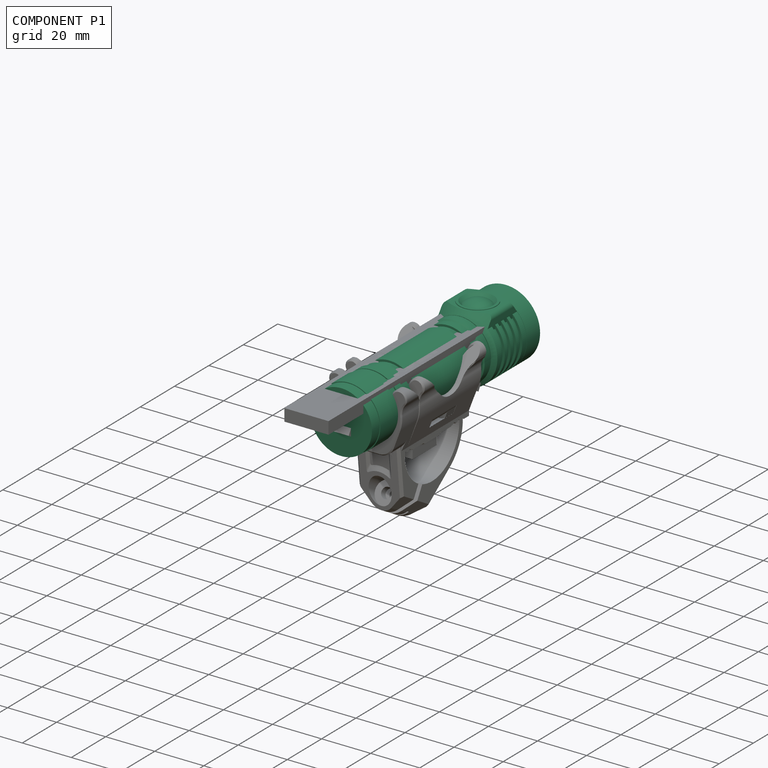
[diagram: component P1 — assembled]
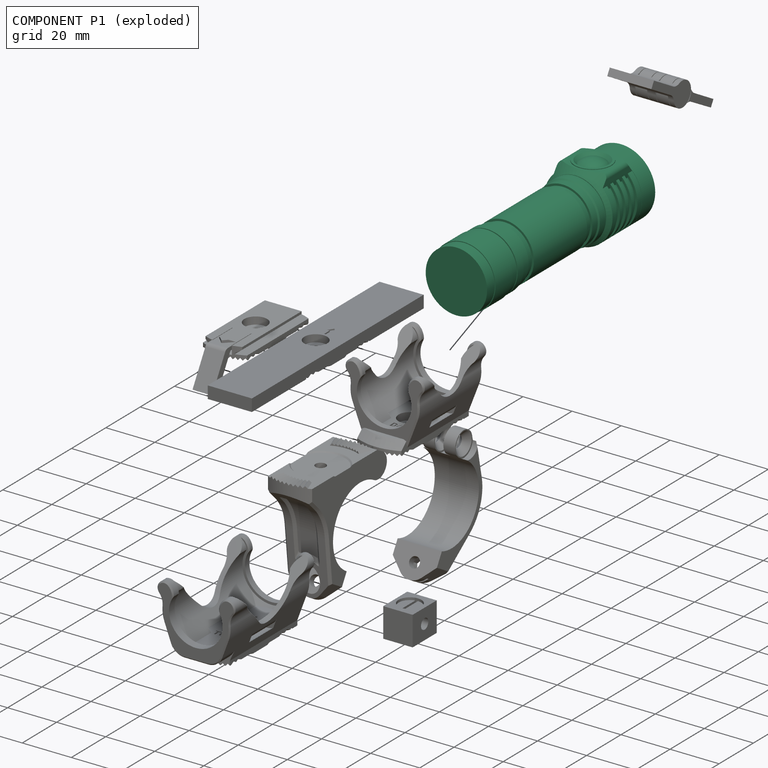
[diagram: component P1 — exploded]
COMPONENT P1 — recipe-attached ("D4", modeled in this document).
Held by: resting contact with P0 (derived edge); resting contact with P2 (derived edge); resting contact with P3 (derived edge); resting contact with P4 (derived edge); resting contact with P6 (derived edge); resting contact with P7 (derived edge); resting contact with P8 (derived edge).
Construction recipe (the document's own serialized feature program — sketch geometry with constraints, then the solid features built on it; lengths are millimeters unless a unit is written):

FEATURE [Sketcher::SketchObject] Sketch001
  MapMode = 5
  Support = -> [XY_Plane001]
  sketch-geometry (52):
    g0: LineSegment StartX=0 StartY=-25 StartZ=0 EndX=12.5 EndY=-25 EndZ=0
    g1: LineSegment StartX=12.5 StartY=-25 StartZ=0 EndX=12.5 EndY=-20.5 EndZ=0
    g2: LineSegment StartX=12.5 StartY=-20.5 StartZ=0 EndX=12.8 EndY=-20.5 EndZ=0
    g3: LineSegment StartX=12.8 StartY=-20.5 StartZ=0 EndX=12.8 EndY=-10.65 EndZ=0
    g4: LineSegment StartX=12.8 StartY=-10.65 StartZ=0 EndX=12.5 EndY=-10.65 EndZ=0
    g5: LineSegment StartX=12.5 StartY=-10.65 StartZ=0 EndX=12.5 EndY=-7.65 EndZ=0
    g6: LineSegment StartX=12.5 StartY=-7.65 StartZ=0 EndX=12 EndY=-7.65 EndZ=0
    g7: LineSegment StartX=12 StartY=-7.65 StartZ=0 EndX=12 EndY=-7.15 EndZ=0
    g8: LineSegment StartX=12 StartY=-7.15 StartZ=0 EndX=12.5 EndY=-7.15 EndZ=0
    g9: LineSegment StartX=12.5 StartY=-7.15 StartZ=0 EndX=12.5 EndY=-3.65 EndZ=0
    g10: LineSegment StartX=12.5 StartY=-3.65 StartZ=0 EndX=12 EndY=-3.15 EndZ=0
    g11: LineSegment StartX=12 StartY=-3.15 StartZ=0 EndX=12 EndY=0 EndZ=0
    g12: LineSegment StartX=12 StartY=0 StartZ=0 EndX=11.175 EndY=0 EndZ=0
    g13: LineSegment StartX=11.175 StartY=0 StartZ=0 EndX=11.175 EndY=3 EndZ=0
    g14: LineSegment StartX=11.175 StartY=3 StartZ=0 EndX=12 EndY=3 EndZ=0
    g15: LineSegment StartX=12 StartY=3 StartZ=0 EndX=12 EndY=34 EndZ=0
    g16: LineSegment StartX=12 StartY=34 StartZ=0 EndX=11.175 EndY=34 EndZ=0
    g17: LineSegment StartX=11.175 StartY=34 StartZ=0 EndX=11.175 EndY=37 EndZ=0
    g18: LineSegment StartX=11.175 StartY=37 StartZ=0 EndX=12 EndY=37 EndZ=0
    g19: LineSegment StartX=12 StartY=37 StartZ=0 EndX=12 EndY=40.15 EndZ=0
    g20: LineSegment StartX=12 StartY=40.15 StartZ=0 EndX=12.5 EndY=40.65 EndZ=0
    g21: LineSegment StartX=12.5 StartY=40.65 StartZ=0 EndX=12.5 EndY=44.15 EndZ=0
    g22: LineSegment StartX=12.5 StartY=44.15 StartZ=0 EndX=12 EndY=44.15 EndZ=0
    g23: LineSegment StartX=12 StartY=44.15 StartZ=0 EndX=12 EndY=44.4 EndZ=0
    g24: LineSegment StartX=12 StartY=44.4 StartZ=0 EndX=12.5 EndY=44.4 EndZ=0
    g25: LineSegment StartX=12.5 StartY=44.4 StartZ=0 EndX=14 EndY=45.9 EndZ=0
    g26: LineSegment StartX=14 StartY=45.9 StartZ=0 EndX=14 EndY=48.4 EndZ=0
    g27: LineSegment StartX=0 StartY=-25 StartZ=0 EndX=0 EndY=69.5 EndZ=0
    g28: LineSegment StartX=14 StartY=48.4 StartZ=0 EndX=13 EndY=48.4 EndZ=0
    g29: LineSegment StartX=13 StartY=48.4 StartZ=0 EndX=13 EndY=50.275 EndZ=0
    g30: LineSegment StartX=13 StartY=50.275 StartZ=0 EndX=14 EndY=50.275 EndZ=0
    g31: LineSegment StartX=14 StartY=50.275 StartZ=0 EndX=14 EndY=51.775 EndZ=0
    g32: LineSegment StartX=14 StartY=51.775 StartZ=0 EndX=13 EndY=51.775 EndZ=0
    g33: LineSegment StartX=13 StartY=51.775 StartZ=0 EndX=13 EndY=53.65 EndZ=0
    g34: LineSegment StartX=13 StartY=53.65 StartZ=0 EndX=14 EndY=53.65 EndZ=0
    g35: LineSegment StartX=14 StartY=53.65 StartZ=0 EndX=14 EndY=55.15 EndZ=0
    g36: LineSegment StartX=14 StartY=55.15 StartZ=0 EndX=13 EndY=55.15 EndZ=0
    g37: LineSegment StartX=13 StartY=55.15 StartZ=0 EndX=13 EndY=57.025 EndZ=0
    g38: LineSegment StartX=13 StartY=57.025 StartZ=0 EndX=14 EndY=57.025 EndZ=0
    g39: LineSegment StartX=14 StartY=57.025 StartZ=0 EndX=14 EndY=58.525 EndZ=0
    g40: LineSegment StartX=14 StartY=58.525 StartZ=0 EndX=13 EndY=58.525 EndZ=0
    g41: LineSegment StartX=13 StartY=58.525 StartZ=0 EndX=13 EndY=60.4 EndZ=0
    g42: LineSegment StartX=13 StartY=60.4 StartZ=0 EndX=14 EndY=60.4 EndZ=0
    g43: LineSegment StartX=13 StartY=71 StartZ=0 EndX=11.5 EndY=69.5 EndZ=0
    g44: LineSegment StartX=11.5 StartY=69.5 StartZ=0 EndX=0 EndY=69.5 EndZ=0
    g45: LineSegment StartX=13 StartY=71 StartZ=0 EndX=13.75 EndY=71 EndZ=0
    g46: LineSegment StartX=13.75 StartY=71 StartZ=0 EndX=14 EndY=70.75 EndZ=0
    g47: LineSegment StartX=14 StartY=63 StartZ=0 EndX=14 EndY=60.4 EndZ=0
    g48: LineSegment StartX=14 StartY=70.75 StartZ=0 EndX=14 EndY=63.1 EndZ=0
    g49: LineSegment StartX=14 StartY=63.1 StartZ=0 EndX=13.5 EndY=63.1 EndZ=0
    g50: LineSegment StartX=13.5 StartY=63.1 StartZ=0 EndX=13.5 EndY=63 EndZ=0
    g51: LineSegment StartX=13.5 StartY=63 StartZ=0 EndX=14 EndY=63 EndZ=0
  constraints (156):
    c: PointOnObject(g0,g-2)
    c: Horizontal(g0)
    c: DistanceX(g0,g0) = 12.5
    c: Coincident(g1,g0)
    c: Vertical(g1)
    c: Coincident(g2,g1)
    c: Horizontal(g2)
    c: Coincident(g3,g2)
    c: Vertical(g3)
    c: Coincident(g4,g3)
    c: Horizontal(g4)
    c: DistanceX(g2,g2) = 0.3
    c: DistanceY(g1,g1) = 4.5
    c: Coincident(g5,g4)
    c: Vertical(g5)
    c: Equal(g4,g2)
    c: DistanceY(g5,g5) = 3
    c: Coincident(g5,g6)
    c: Horizontal(g6)
    c: Coincident(g6,g7)
    c: Vertical(g7)
    c: Coincident(g7,g8)
    c: Horizontal(g8)
    c: Coincident(g8,g9)
    c: Vertical(g9)
    c: Coincident(g9,g10)
    c: Coincident(g10,g11)
    c: Vertical(g11)
    c: Coincident(g11,g12)
    c: Coincident(g12,g13)
    c: Vertical(g13)
    c: Coincident(g13,g14)
    c: Horizontal(g14)
    c: Coincident(g14,g15)
    c: Vertical(g15)
    c: Coincident(g15,g16)
    c: Horizontal(g16)
    c: Coincident(g16,g17)
    c: Vertical(g17)
    c: Coincident(g17,g18)
    c: Coincident(g18,g19)
    c: Coincident(g19,g20)
    c: Coincident(g20,g21)
    c: Vertical(g21)
    c: Coincident(g21,g22)
    c: Horizontal(g22)
    c: Coincident(g22,g23)
    c: Coincident(g23,g24)
    c: Horizontal(g24)
    c: Coincident(g24,g25)
    c: Coincident(g25,g26)
    c: Vertical(g26)
    c: DistanceY(g0,g5) = 17.35
    c: Equal(g6,g7)
    c: DistanceX(g6,g6) = 0.5
    c: DistanceY(g9,g9) = 3.5
    c: Angle(g10,g9) = 2.35619
    c: Equal(g8,g6)
    c: DistanceX(g0,g10) = 12
    c: Horizontal(g12)
    c: DistanceY(g0,g11) = 25
    c: DistanceX(g0,g12) = 11.175
    c: Equal(g12,g14)
    c: DistanceY(g11,g14) = 3
    c: DistanceY(g15,g15) = 31
    c: Equal(g14,g16)
    c: Equal(g17,g13)
    c: Horizontal(g18)
    c: Equal(g18,g16)
    c: Vertical(g19)
    c: Angle(g19,g20) = 2.35619
    c: Equal(g19,g11)
    c: Equal(g20,g10)
    c: Equal(g9,g21)
    c: PointOnObject(g12,g-1)
    c: Coincident(g27,g0)
    c: Vertical(g27)
    c: Vertical(g23)
    c: Angle(g25,g24) = 2.35619
    c: DistanceY(g23,g23) = 0.25
    c: DistanceX(g22,g22) = 0.5
    c: Equal(g22,g24)
    c: DistanceX(g-1,g25) = 14
    c: Coincident(g26,g28)
    c: Horizontal(g28)
    c: Coincident(g28,g29)
    c: Vertical(g29)
    c: Coincident(g29,g30)
    c: Horizontal(g30)
    c: Coincident(g30,g31)
    c: Vertical(g31)
    c: Coincident(g31,g32)
    c: Horizontal(g32)
    c: Coincident(g32,g33)
    c: Coincident(g33,g34)
    c: Horizontal(g34)
    c: Coincident(g34,g35)
    c: Vertical(g35)
    c: Coincident(g35,g36)
    c: Horizontal(g36)
    c: Coincident(g36,g37)
    c: Vertical(g37)
    c: Coincident(g37,g38)
    c: Horizontal(g38)
    c: Coincident(g38,g39)
    c: Vertical(g39)
    c: Coincident(g39,g40)
    c: Horizontal(g40)
    c: Coincident(g40,g41)
    c: Vertical(g41)
    c: Coincident(g41,g42)
    c: Horizontal(g42)
    c: Coincident(g43,g44)
    c: Coincident(g44,g27)
    c: Horizontal(g44)
    c: Vertical(g33)
    c: Equal(g28,g30)
    c: Equal(g30,g32)
    c: Equal(g32,g34)
    c: Equal(g34,g36)
    c: Equal(g36,g38)
    c: Equal(g38,g40)
    c: Equal(g40,g42)
    c: Equal(g39,g35)
    c: Equal(g35,g31)
    c: Equal(g29,g33)
    c: Equal(g33,g37)
    c: Equal(g37,g41)
    c: DistanceY(g31,g31) = 1.5
    c: DistanceY(g26,g42) = 12
    c: DistanceX(g28,g28) = 1
    c: DistanceY(g24,g26) = 4
    c: Angle(g43,g44) = 2.35619
    c: DistanceX(g44,g44) = 11.5
    c: Coincident(g45,g43)
    c: Horizontal(g45)
    c: Coincident(g46,g45)
    c: DistanceY(g0,g45) = 96
    c: Perpendicular(g43,g46)
    c: DistanceY(g46,g46) = 0.25
    c: Coincident(g47,g42)
    c: Vertical(g47)
    c: DistanceY(g47,g45) = 8
    c: DistanceX(g43,g46) = 1
    c: Coincident(g48,g46)
    c: Vertical(g48)
    c: Coincident(g49,g48)
    c: Horizontal(g49)
    c: Coincident(g50,g49)
    c: Vertical(g50)
    c: Coincident(g51,g50)
    c: Coincident(g51,g47)
    c: Horizontal(g51)
    c: Equal(g49,g24)
    c: DistanceY(g50,g50) = 0.1
    c: Equal(g49,g51)
FEATURE [PartDesign::Revolution] Revolution
  Angle = 360
  Axis = (0,1,0)
  Base = (0,0,0)
  Profile = -> Sketch001
  ReferenceAxis = -> Sketch001 [V_Axis]
  Reversed = true
FEATURE [PartDesign::CoordinateSystem] LCS_11  label="LCS_D4v2_front_clip"
  AttacherType = Attacher::AttachEngine3D
  MapMode = 11
  Placement = pos=(0,37,0) rot=(0.57735,-0.57735,0.57735;2.0944rad)
  Support = -> [Revolution]
FEATURE [Sketcher::SketchObject] Sketch069
  ExternalGeometry = -> [Sketch001]
  MapMode = 5
  Support = -> [XY_Plane001]
  sketch-geometry (6):
    g0: LineSegment StartX=10 StartY=63 StartZ=0 EndX=-10 EndY=63 EndZ=0
    g1: LineSegment StartX=-10 StartY=63 StartZ=0 EndX=-10 EndY=45.9 EndZ=0
    g2: LineSegment StartX=-10 StartY=45.9 StartZ=0 EndX=10 EndY=45.9 EndZ=0
    g3: LineSegment StartX=10 StartY=45.9 StartZ=0 EndX=10 EndY=63 EndZ=0
    g4: LineSegment [constr] StartX=14 StartY=63 StartZ=0 EndX=10 EndY=63 EndZ=0
    g5: LineSegment [constr] StartX=10 StartY=45.9 StartZ=0 EndX=14 EndY=45.9 EndZ=0
  constraints (15):
    c: Coincident(g0,g1)
    c: Coincident(g1,g2)
    c: Coincident(g2,g3)
    c: Coincident(g3,g0)
    c: Horizontal(g2)
    c: Vertical(g1)
    c: Vertical(g3)
    c: Symmetric(g0,g0,g-2)
    c: DistanceX(g0,g0) = 20
    c: Coincident(g4,g0)
    c: Horizontal(g4)
    c: Coincident(g4,g-3)
    c: Coincident(g5,g2)
    c: Coincident(g5,g-4)
    c: Horizontal(g5)
FEATURE [PartDesign::Pad] Pad016
  BaseFeature = -> Revolution
  Direction = (1,1,1)
  Length = 14.25
  Length2 = 100
  Profile = -> Sketch069
  Type = 0
FEATURE [PartDesign::Fillet] Fillet002
  Base = -> Pad016 [Edge63,Edge44]
  BaseFeature = -> Pad016
  Radius = 2
  SupportTransform = false
FEATURE [Sketcher::SketchObject] Sketch070
  ExternalGeometry = -> [Sketch001]
  MapMode = 5
  Support = -> [XY_Plane001]
  sketch-geometry (6):
    g0: LineSegment StartX=14 StartY=63 StartZ=0 EndX=19 EndY=58 EndZ=0
    g1: LineSegment StartX=14 StartY=63 StartZ=0 EndX=19 EndY=63 EndZ=0
    g2: LineSegment StartX=19 StartY=63 StartZ=0 EndX=19 EndY=58 EndZ=0
    g3: LineSegment StartX=14 StartY=45.9 StartZ=0 EndX=19 EndY=45.9 EndZ=0
    g4: LineSegment StartX=19 StartY=45.9 StartZ=0 EndX=19 EndY=50.9 EndZ=0
    g5: LineSegment StartX=19 StartY=50.9 StartZ=0 EndX=14 EndY=45.9 EndZ=0
  constraints (16):
    c: Coincident(g1,g0)
    c: Coincident(g2,g1)
    c: Coincident(g2,g0)
    c: Coincident(g3,g-3)
    c: Coincident(g4,g3)
    c: Vertical(g4)
    c: Coincident(g5,g4)
    c: Coincident(g5,g3)
    c: Horizontal(g3)
    c: Horizontal(g1)
    c: Vertical(g2)
    c: Equal(g1,g3)
    c: Equal(g4,g3)
    c: Equal(g2,g1)
    c: DistanceX(g3,g3) = 5
    c: Coincident(g0,g-4)
FEATURE [PartDesign::Groove] Groove007
  Angle = 360
  Axis = (0,1,0)
  Base = (0,0,0)
  BaseFeature = -> Fillet002
  Profile = -> Sketch070
  ReferenceAxis = -> Sketch070 [V_Axis]
  Refine = true
FEATURE [Sketcher::SketchObject] Sketch072
  AttachmentOffset = pos=(0,0,12) rot=(0,0,1;0rad)
  ExternalGeometry = -> [Sketch069]
  MapMode = 5
  Placement = pos=(0,0,12) rot=(0,0,1;0rad)
  Support = -> [XY_Plane001]
  sketch-geometry (3):
    g0: Circle CenterX=0 CenterY=54.45 CenterZ=0 NormalX=0 NormalY=0 NormalZ=1 AngleXU=0 Radius=7.5
    g1: LineSegment [constr] StartX=0 StartY=54.45 StartZ=0 EndX=0 EndY=63 EndZ=0
    g2: LineSegment [constr] StartX=0 StartY=54.45 StartZ=0 EndX=0 EndY=45.9 EndZ=0
  constraints (9):
    c: PointOnObject(g0,g-2)
    c: Coincident(g1,g0)
    c: PointOnObject(g1,g-3)
    c: Coincident(g2,g0)
    c: PointOnObject(g2,g-4)
    c: Vertical(g2)
    c: Vertical(g1)
    c: Equal(g1,g2)
    c: Diameter(g0) = 15
FEATURE [Sketcher::SketchObject] Sketch071
  ExternalGeometry = -> [Sketch069,Sketch072]
  MapMode = 5
  Placement = pos=(0,0,0) rot=(0.57735,0.57735,0.57735;2.0944rad)
  Support = -> [YZ_Plane001]
  sketch-geometry (7):
    g0: LineSegment StartX=46.95 StartY=12 StartZ=0 EndX=46.95 EndY=14.5 EndZ=0
    g1: LineSegment StartX=46.95 StartY=14.5 StartZ=0 EndX=47.95 EndY=14.5 EndZ=0
    g2: LineSegment StartX=47.95 StartY=14.5 StartZ=0 EndX=49.2 EndY=13.25 EndZ=0
    g3: ArcOfCircle CenterX=54.45 CenterY=7.35938 CenterZ=0 NormalX=0 NormalY=0 NormalZ=1 AngleXU=0 Radius=7.89062 StartAngle=1.5708 EndAngle=2.29875
    g4: LineSegment StartX=54.45 StartY=12 StartZ=0 EndX=46.95 EndY=12 EndZ=0
    g5: LineSegment [constr] StartX=54.45 StartY=12 StartZ=0 EndX=54.45 EndY=1.24e-14 EndZ=0
    g6: LineSegment StartX=54.45 StartY=12 StartZ=0 EndX=54.45 EndY=15.25 EndZ=0
  constraints (20):
    c: Vertical(g0)
    c: Coincident(g1,g0)
    c: Horizontal(g1)
    c: Coincident(g2,g1)
    c: Coincident(g3,g2)
    c: Coincident(g0,g4)
    c: PointOnObject(g5,g-3)
    c: Symmetric(g-3,g-3,g5)
    c: PointOnObject(g3,g5)
    c: Coincident(g6,g5)
    c: Vertical(g6)
    c: DistanceY(g0,g6) = 0.75
    c: DistanceY(g-3,g0) = 14.5
    c: Coincident(g0,g-4)
    c: DistanceX(g1,g1) = 1
    c: DistanceX(g2,g6) = 5.25
    c: Coincident(g3,g6)
    c: Coincident(g4,g6)
    c: Horizontal(g4)
    c: Angle(g0,g2) = 0.785398
FEATURE [PartDesign::Pocket] Pocket035
  BaseFeature = -> Groove007
  Length = 5
  Length2 = 100
  Profile = -> Sketch072
  Reversed = true
  Type = 1
FEATURE [PartDesign::Line] DatumLine007
  AttacherType = Attacher::AttachEngineLine
  Length = 20
  MapMode = 29
  Placement = pos=(1.21e-14,54.45,0) rot=(0,0,1;0rad)
  ResizeMode = 0
  Support = -> [Sketch071]
FEATURE [PartDesign::Revolution] Revolution002
  Angle = 360
  Axis = (-2e-16,0,1)
  Base = (1.21e-14,54.45,0)
  BaseFeature = -> Pocket035
  Profile = -> Sketch071
  ReferenceAxis = -> DatumLine007
  Refine = true
  Reversed = true
FEATURE [PartDesign::Body] Body001  label="D4"
  Group = -> [Sketch001,Revolution,Sketch069,Pad016,Fillet002,Sketch070,Groove007,Sketch071,Sketch072,Pocket035,DatumLine007,Revolution002,LCS_11]
  Origin = -> Origin001
  Placement = pos=(0,-15,18.75) rot=(0,0,1;0rad)
  Tip = -> Revolution002
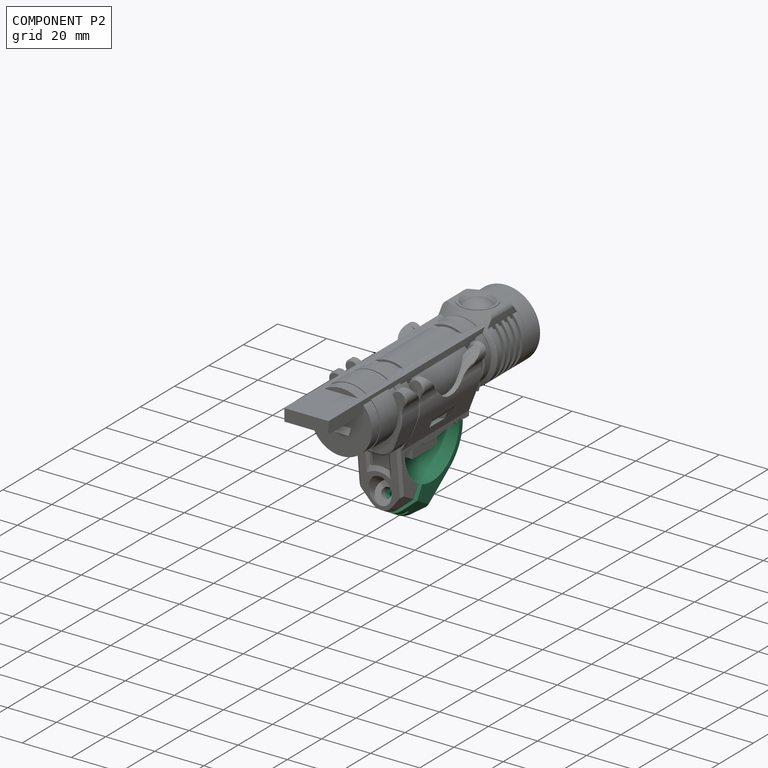
[diagram: component P2 — assembled]
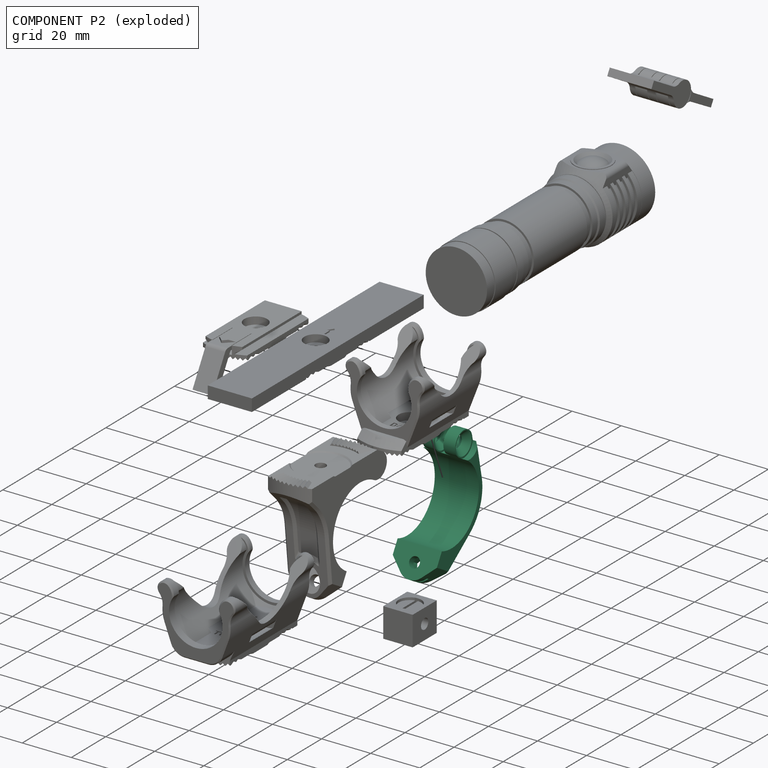
[diagram: component P2 — exploded]
COMPONENT P2 — recipe-attached ("Lower clamp", modeled in this document).
Held by: resting contact with P0 (derived edge); resting contact with P1 (derived edge); resting contact with P3 (derived edge); resting contact with P4 (derived edge); resting contact with P6 (derived edge); resting contact with P7 (derived edge); resting contact with P8 (derived edge).
Construction recipe (the document's own serialized feature program — sketch geometry with constraints, then the solid features built on it; lengths are millimeters unless a unit is written):

FEATURE [Sketcher::SketchObject] Sketch018
  MapMode = 5
  Placement = pos=(0,0,0) rot=(0.57735,0.57735,0.57735;2.0944rad)
  Support = -> [YZ_Plane006]
  expr: Constraints[3] = <<Dimensions>>.clamp_diameter
  expr: Constraints[39] = <<Dimensions>>.m4_nut_slot_width / 2
  sketch-geometry (13):
    g0: ArcOfCircle CenterX=0 CenterY=0 CenterZ=0 NormalX=0 NormalY=0 NormalZ=1 AngleXU=0 Radius=15.9 StartAngle=4.34668 EndAngle=7.33038
    g1: ArcOfCircle CenterX=10.45 CenterY=18.0999 CenterZ=0 NormalX=0 NormalY=0 NormalZ=1 AngleXU=0 Radius=5 StartAngle=0.203991 EndAngle=4.18879
    g2: ArcOfCircle CenterX=0 CenterY=0 CenterZ=0 NormalX=0 NormalY=0 NormalZ=1 AngleXU=0 Radius=18.9 StartAngle=5.34432 EndAngle=6.48718
    g3: LineSegment [constr] StartX=15.9 StartY=0 StartZ=0 EndX=18.9 EndY=0 EndZ=0
    g4: LineSegment StartX=15.3463 StartY=19.1128 StartZ=0 EndX=18.5081 EndY=3.82875 EndZ=0
    g5: LineSegment StartX=-5.68605 StartY=-14.8485 StartZ=0 EndX=-11.7849 EndY=-25.4121 EndZ=0
    g6: LineSegment [constr] StartX=10.45 StartY=18.0999 StartZ=0 EndX=-7.95 EndY=-13.7698 EndZ=0
    g7: LineSegment [constr] StartX=-7.95 StartY=-13.7698 StartZ=0 EndX=-13.95 EndY=-24.1621 EndZ=0
    g8: LineSegment [constr] StartX=-13.95 StartY=-24.1621 StartZ=0 EndX=-11.7849 EndY=-25.4121 EndZ=0
    g9: LineSegment StartX=-11.7849 StartY=-25.4121 StartZ=0 EndX=-6.71512 EndY=-28.3392 EndZ=0
    g10: LineSegment StartX=-6.71512 StartY=-28.3392 StartZ=0 EndX=11.1642 EndY=-15.2502 EndZ=0
    g11: LineSegment [constr] StartX=-8.73549 StartY=-20.1303 StartZ=0 EndX=0 EndY=-25.1738 EndZ=0
    g12: LineSegment [constr] StartX=-10.4855 StartY=-23.1614 StartZ=0 EndX=-4.42332 EndY=-26.6614 EndZ=0
  constraints (41):
    c: Coincident(g0,g-1)
    c: Coincident(g1,g0)
    c: Tangent(g1,g0)
    c: Diameter(g0) = 31.8
    c: Radius(g1) = 5
    c: Coincident(g2,g0)
    c: PointOnObject(g3,g0)
    c: PointOnObject(g3,g2)
    c: Horizontal(g3)
    c: PointOnObject(g3,g-1)
    c: DistanceX(g3,g3) = 3
    c: Coincident(g4,g1)
    c: Coincident(g4,g2)
    c: Tangent(g4,g1)
    c: Tangent(g4,g2)
    c: Coincident(g5,g0)
    c: Coincident(g6,g1)
    c: PointOnObject(g6,g0)
    c: PointOnObject(g0,g6)
    c: Angle(g6,g-2) = 0.523599
    c: Coincident(g7,g6)
    c: Distance(g7) = 12
    c: Parallel(g7,g6)
    c: Coincident(g8,g7)
    c: Coincident(g8,g5)
    c: Perpendicular(g8,g7)
    c: Parallel(g5,g7)
    c: Distance(g8) = 2.5
    c: Coincident(g9,g5)
    c: Coincident(g10,g9)
    c: Coincident(g10,g2)
    c: Tangent(g10,g2)
    c: Perpendicular(g5,g9)
    c: PointOnObject(g11,g5)
    c: PointOnObject(g11,g-2)
    c: Symmetric(g0,g5,g11)
    c: PointOnObject(g12,g5)
    c: PointOnObject(g12,g10)
    c: Perpendicular(g5,g12)
    c: Distance(g12,g11) = 3.5
    c: Distance(g12) = 7
FEATURE [PartDesign::Pad] Pad004
  Direction = (1,1,1)
  Length = 18
  Length2 = 100
  Midplane = true
  Placement = pos=(0,0,0) rot=(0.57735,0.57735,0.57735;2.0944rad)
  Profile = -> Sketch018
  Type = 0
FEATURE [PartDesign::Line] DatumLine002
  AttacherType = Attacher::AttachEngineLine
  Length = 20
  MapMode = 19
  Placement = pos=(-1.7e-15,10.45,18.0999) rot=(0.612783,0.498992,0.612783;2.21591rad)
  ResizeMode = 0
  Support = -> [Sketch018]
FEATURE [PartDesign::ShapeBinder] ShapeBinder
  Placement = pos=(0,10.45,18.0999) rot=(0,0.258819,0.965926;3.14159rad)
  Support = -> [Sketch017]
  TraceSupport = false
FEATURE [Sketcher::SketchObject] Sketch019
  ExternalGeometry = -> [ShapeBinder]
  MapMode = 14
  Placement = pos=(0,10.45,18.0999) rot=(0,0.258819,0.965926;3.14159rad)
  Support = -> [DatumLine002,Z_Axis006]
  expr: Constraints[33] = <<Dimensions>>.hinge_tolerance
  sketch-geometry (24):
    g0: LineSegment StartX=-9 StartY=0 StartZ=0 EndX=9 EndY=0 EndZ=0
    g1: LineSegment StartX=-9 StartY=0 StartZ=0 EndX=-9 EndY=5.3 EndZ=0
    g2: LineSegment StartX=-9 StartY=5.3 StartZ=0 EndX=-6.65 EndY=5.3 EndZ=0
    g3: LineSegment StartX=-6.65 StartY=5.3 StartZ=0 EndX=-6.65 EndY=4.6 EndZ=0
    g4: LineSegment StartX=-6.65 StartY=4.6 StartZ=0 EndX=-4.35 EndY=2.3 EndZ=0
    g5: LineSegment StartX=-4.35 StartY=2.3 StartZ=0 EndX=-4.15 EndY=2.3 EndZ=0
    g6: LineSegment StartX=-4.15 StartY=2.3 StartZ=0 EndX=-1.85 EndY=4.6 EndZ=0
    g7: LineSegment StartX=-1.85 StartY=4.6 StartZ=0 EndX=-1.85 EndY=5.3 EndZ=0
    g8: LineSegment StartX=-1.85 StartY=5.3 StartZ=0 EndX=1.85 EndY=5.3 EndZ=0
    g9: LineSegment [constr] StartX=-6.65 StartY=4.6 StartZ=0 EndX=-6.65 EndY=4.3 EndZ=0
    g10: LineSegment [constr] StartX=-4.35 StartY=2.3 StartZ=0 EndX=-4.35 EndY=2 EndZ=0
    g11: LineSegment [constr] StartX=-1.85 StartY=4.6 StartZ=0 EndX=-1.85 EndY=4.3 EndZ=0
    g12: LineSegment [constr] StartX=-4.15 StartY=2.3 StartZ=0 EndX=-4.15 EndY=2 EndZ=0
    g13: LineSegment StartX=1.85 StartY=5.3 StartZ=0 EndX=1.85 EndY=4.6 EndZ=0
    g14: LineSegment StartX=1.85 StartY=4.6 StartZ=0 EndX=4.15 EndY=2.3 EndZ=0
    g15: LineSegment StartX=4.15 StartY=2.3 StartZ=0 EndX=4.35 EndY=2.3 EndZ=0
    g16: LineSegment StartX=4.35 StartY=2.3 StartZ=0 EndX=6.65 EndY=4.6 EndZ=0
    g17: LineSegment StartX=6.65 StartY=4.6 StartZ=0 EndX=6.65 EndY=5.3 EndZ=0
    g18: LineSegment StartX=6.65 StartY=5.3 StartZ=0 EndX=9 EndY=5.3 EndZ=0
    g19: LineSegment StartX=9 StartY=5.3 StartZ=0 EndX=9 EndY=0 EndZ=0
    g20: LineSegment [constr] StartX=1.85 StartY=4.6 StartZ=0 EndX=1.85 EndY=4.3 EndZ=0
    g21: LineSegment [constr] StartX=4.15 StartY=2.3 StartZ=0 EndX=4.15 EndY=2 EndZ=0
    g22: LineSegment [constr] StartX=4.35 StartY=2.3 StartZ=0 EndX=4.35 EndY=2 EndZ=0
    g23: LineSegment [constr] StartX=6.65 StartY=4.6 StartZ=0 EndX=6.65 EndY=4.3 EndZ=0
  constraints (68):
    c: PointOnObject(g0,g-1)
    c: Symmetric(g0,g0,g-2)
    c: DistanceX(g0,g0) = 18
    c: Coincident(g1,g0)
    c: Vertical(g1)
    c: Coincident(g2,g1)
    c: Horizontal(g2)
    c: DistanceX(g-3,g2) = 0.2
    c: Coincident(g3,g2)
    c: Vertical(g3)
    c: Coincident(g4,g3)
    c: Coincident(g5,g4)
    c: Coincident(g6,g5)
    c: Coincident(g7,g6)
    c: Vertical(g7)
    c: Coincident(g8,g7)
    c: Horizontal(g8)
    c: PointOnObject(g-4,g8)
    c: Coincident(g9,g3)
    c: PointOnObject(g9,g-6)
    c: Vertical(g9)
    c: Coincident(g10,g4)
    c: Coincident(g10,g-6)
    c: Vertical(g10)
    c: Coincident(g11,g6)
    c: PointOnObject(g11,g-5)
    c: Vertical(g11)
    c: Coincident(g12,g5)
    c: Coincident(g12,g-5)
    c: Vertical(g12)
    c: Equal(g10,g12)
    c: Equal(g12,g11)
    c: Equal(g11,g9)
    c: DistanceY(g9,g9) = 0.3
    c: PointOnObject(g-3,g2)
    c: Coincident(g13,g8)
    c: Vertical(g13)
    c: Coincident(g14,g13)
    c: Coincident(g15,g14)
    c: Coincident(g16,g15)
    c: Coincident(g17,g16)
    c: Vertical(g17)
    c: Coincident(g18,g17)
    c: Horizontal(g18)
    c: Coincident(g19,g18)
    c: Coincident(g19,g0)
    c: Vertical(g19)
    c: Coincident(g20,g13)
    c: PointOnObject(g20,g-8)
    c: Vertical(g20)
    c: Coincident(g21,g14)
    c: Coincident(g21,g-8)
    c: Coincident(g22,g15)
    c: Coincident(g22,g-9)
    c: Vertical(g22)
    c: Vertical(g21)
    c: Coincident(g23,g16)
    c: PointOnObject(g23,g-9)
    c: Vertical(g23)
    c: Equal(g23,g22)
    c: Equal(g22,g21)
    c: Equal(g21,g20)
    c: Equal(g20,g11)
    c: PointOnObject(g-10,g18)
    c: Equal(g7,g3)
    c: Equal(g13,g17)
    c: Equal(g13,g7)
    c: DistanceX(g8,g17) = 4.8
FEATURE [PartDesign::CoordinateSystem] LCS_5  label="LCS_Lower_clamp_hinge"
  AttacherType = Attacher::AttachEngine3D
  MapMode = 7
  Placement = pos=(-1.7e-15,10.45,18.0999) rot=(-0.57735,0.57735,0.57735;4.18879rad)
  Support = -> [DatumLine002]
FEATURE [Sketcher::SketchObject] Sketch020
  ExternalGeometry = -> [Pad004]
  MapMode = 5
  Placement = pos=(1.3e-15,2.16506,-1.25) rot=(0.447214,0.447214,-0.774597;1.82348rad)
  Support = -> [Pad004]
  expr: Constraints[1] = <<Dimensions>>.m4_through_hole_diameter
  sketch-geometry (3):
    g0: Circle CenterX=21.8011 CenterY=0 CenterZ=0 NormalX=0 NormalY=0 NormalZ=1 AngleXU=0 Radius=2.125
    g1: LineSegment [constr] StartX=21.8011 StartY=0 StartZ=0 EndX=15.7022 EndY=0 EndZ=0
    g2: LineSegment [constr] StartX=21.8011 StartY=0 StartZ=0 EndX=27.9 EndY=0 EndZ=0
  constraints (9):
    c: PointOnObject(g0,g-1)
    c: Diameter(g0) = 4.25
    c: Coincident(g1,g0)
    c: PointOnObject(g1,g-3)
    c: Horizontal(g1)
    c: Coincident(g2,g0)
    c: PointOnObject(g2,g-4)
    c: Horizontal(g2)
    c: Equal(g2,g1)
FEATURE [Sketcher::SketchObject] Sketch021
  AttachmentOffset = pos=(0,0,-3) rot=(0,0,1;0rad)
  MapMode = 11
  Placement = pos=(-1.6e-15,-6.13742,-21.6303) rot=(1,0,0;1.0472rad)
  Support = -> [Sketch020]
  expr: Constraints[11] = <<Dimensions>>.m4_washer_slot_diameter
  sketch-geometry (4):
    g0: ArcOfCircle CenterX=0 CenterY=0 CenterZ=0 NormalX=0 NormalY=0 NormalZ=1 AngleXU=0 Radius=4.65 StartAngle=0 EndAngle=3.14159
    g1: LineSegment StartX=4.65 StartY=0 StartZ=0 EndX=4.65 EndY=-10 EndZ=0
    g2: LineSegment StartX=4.65 StartY=-10 StartZ=0 EndX=-4.65 EndY=-10 EndZ=0
    g3: LineSegment StartX=-4.65 StartY=-10 StartZ=0 EndX=-4.65 EndY=0 EndZ=0
  constraints (12):
    c: Coincident(g0,g-1)
    c: PointOnObject(g0,g-1)
    c: PointOnObject(g0,g-1)
    c: Coincident(g1,g2)
    c: Coincident(g2,g3)
    c: Horizontal(g2)
    c: Vertical(g1)
    c: Vertical(g3)
    c: Coincident(g0,g1)
    c: Coincident(g0,g3)
    c: DistanceY(g3,g3) = 10
    c: Diameter(g0) = 9.3
FEATURE [Sketcher::SketchObject] Sketch022
  AttachmentOffset = pos=(0,0,-4) rot=(0,0,1;0rad)
  MapMode = 11
  Placement = pos=(-1e-15,-5.27139,-22.1303) rot=(1,0,0;1.0472rad)
  Support = -> [Sketch020]
  expr: Constraints[19] = <<Dimensions>>.m4_nut_slot_width
  expr: .AttachmentOffset.Base.z = -3 - <<Dimensions>>.m4_washer_slot_thickness
  sketch-geometry (7):
    g0: LineSegment StartX=-4.04145 StartY=-1e-16 StartZ=0 EndX=-2.02073 EndY=-3.5 EndZ=0
    g1: LineSegment StartX=-2.02073 StartY=-3.5 StartZ=0 EndX=2.02073 EndY=-3.5 EndZ=0
    g2: LineSegment StartX=2.02073 StartY=-3.5 StartZ=0 EndX=4.04145 EndY=0 EndZ=0
    g3: LineSegment StartX=4.04145 StartY=1e-16 StartZ=0 EndX=2.02073 EndY=3.5 EndZ=0
    g4: LineSegment StartX=2.02073 StartY=3.5 StartZ=0 EndX=-2.02073 EndY=3.5 EndZ=0
    g5: LineSegment StartX=-2.02073 StartY=3.5 StartZ=0 EndX=-4.04145 EndY=0 EndZ=0
    g6: Circle [constr] CenterX=0 CenterY=0 CenterZ=0 NormalX=0 NormalY=0 NormalZ=1 AngleXU=0 Radius=4.04145
  constraints (16):
    c: Coincident(g0,g1)
    c: Coincident(g1,g2)
    c: Coincident(g2,g3)
    c: Coincident(g3,g4)
    c: Coincident(g4,g5)
    c: Coincident(g5,g0)
    c: Equal(g0, g1-g5) x5
    c: PointOnObject(g0,g6)
    c: PointOnObject(g1,g6)
    c: PointOnObject(g2,g6)
    c: PointOnObject(g3,g6)
    c: PointOnObject(g4,g6)
    c: PointOnObject(g5,g6)
    c: Coincident(g6,g-1)
    c: Horizontal(g4)
    c: DistanceY(g0,g4) = 7
FEATURE [PartDesign::CoordinateSystem] LCS_6  label="LCS_Lower_clamp_clamping_washer"
  AttacherType = Attacher::AttachEngine3D
  MapMode = 11
  Placement = pos=(-1.8e-15,-6.13742,-21.6303) rot=(0.447214,-0.447214,0.774597;1.82348rad)
  Support = -> [Sketch021]
FEATURE [PartDesign::CoordinateSystem] LCS_7  label="LCS_Lower_clamp_clamping_nut"
  AttacherType = Attacher::AttachEngine3D
  AttachmentOffset = pos=(0,0,-1) rot=(0,0,1;0rad)
  MapMode = 5
  Placement = pos=(-1.1e-15,-5.27139,-22.1303) rot=(0.447214,-0.447214,0.774597;1.82348rad)
  Support = -> [LCS_6]
  expr: .AttachmentOffset.Base.z = -<<Dimensions>>.m4_washer_slot_thickness
FEATURE [Sketcher::SketchObject] Sketch023
  ExternalGeometry = -> [Pad004]
  MapMode = 5
  Placement = pos=(1.3e-15,2.16506,-1.25) rot=(0.447214,0.447214,-0.774597;1.82348rad)
  Support = -> [Pad004]
  sketch-geometry (7):
    g0: ArcOfCircle CenterX=21.8011 CenterY=0 CenterZ=0 NormalX=0 NormalY=0 NormalZ=1 AngleXU=0 Radius=6.09889 StartAngle=5.49779 EndAngle=7.06858
    g1: LineSegment StartX=21.4262 StartY=9 StartZ=0 EndX=28.9 EndY=9 EndZ=0
    g2: LineSegment StartX=21.4262 StartY=-9 StartZ=0 EndX=28.9 EndY=-9 EndZ=0
    g3: LineSegment StartX=28.9 StartY=-9 StartZ=0 EndX=28.9 EndY=9 EndZ=0
    g4: LineSegment StartX=21.4262 StartY=9 StartZ=0 EndX=26.1137 EndY=4.31255 EndZ=0
    g5: LineSegment StartX=26.1137 StartY=-4.31255 StartZ=0 EndX=21.4262 EndY=-9 EndZ=0
    g6: LineSegment [constr] StartX=15.7022 StartY=0 StartZ=0 EndX=27.9 EndY=0 EndZ=0
  constraints (22):
    c: PointOnObject(g0,g-1)
    c: Horizontal(g1)
    c: Horizontal(g2)
    c: Coincident(g3,g2)
    c: Coincident(g3,g1)
    c: Vertical(g3)
    c: DistanceX(g-4,g2) = 1
    c: Tangent(g0,g-4)
    c: PointOnObject(g-4,g1)
    c: PointOnObject(g-4,g2)
    c: Coincident(g4,g1)
    c: Coincident(g4,g0)
    c: Coincident(g5,g0)
    c: Coincident(g5,g2)
    c: Tangent(g5,g0)
    c: Tangent(g0,g4)
    c: Angle(g2,g5) = 0.785398
    c: Equal(g1,g2)
    c: PointOnObject(g6,g-3)
    c: PointOnObject(g6,g-4)
    c: Horizontal(g6)
    c: Symmetric(g6,g6,g0)
FEATURE [PartDesign::Pocket] Pocket010
  BaseFeature = -> Pad004
  Length = 5
  Length2 = 100
  Placement = pos=(0,0,0) rot=(0.57735,0.57735,0.57735;2.0944rad)
  Profile = -> Sketch023
  Refine = true
  Type = 1
FEATURE [PartDesign::Groove] Groove002
  Angle = 360
  Axis = (-1,0,0)
  Base = (0,10.45,18.0999)
  BaseFeature = -> Pocket010
  Placement = pos=(0,0,0) rot=(0.57735,0.57735,0.57735;2.0944rad)
  Profile = -> Sketch019
  ReferenceAxis = -> Sketch019 [H_Axis]
  Reversed = true
FEATURE [PartDesign::Pocket] Pocket007
  BaseFeature = -> Groove002
  Length = 5
  Length2 = 100
  Placement = pos=(0,0,0) rot=(0.57735,0.57735,0.57735;2.0944rad)
  Profile = -> Sketch020
  Type = 1
FEATURE [PartDesign::Pocket] Pocket008
  BaseFeature = -> Pocket007
  Length = 1
  Length2 = 100
  Placement = pos=(0,0,0) rot=(0.57735,0.57735,0.57735;2.0944rad)
  Profile = -> Sketch021
  Type = 0
  expr: Length = <<Dimensions>>.m4_washer_slot_thickness
FEATURE [PartDesign::Pocket] Pocket009
  BaseFeature = -> Pocket008
  Length = 5
  Length2 = 100
  Placement = pos=(0,0,0) rot=(0.57735,0.57735,0.57735;2.0944rad)
  Profile = -> Sketch022
  Type = 1
FEATURE [Sketcher::SketchObject] Sketch048
  ExternalGeometry = -> [Pocket010]
  MapMode = 5
  Placement = pos=(9.3e-15,11.1642,-15.2502) rot=(0.688939,0.688939,0.225225;3.58465rad)
  Support = -> [Pocket010]
  expr: Constraints[4] = <<Pocket021>>.Length
  sketch-geometry (6):
    g0: LineSegment StartX=1 StartY=5 StartZ=0 EndX=-11.0853 EndY=5 EndZ=0
    g1: LineSegment StartX=1 StartY=-5 StartZ=0 EndX=-11.0853 EndY=-5 EndZ=0
    g2: ArcOfCircle CenterX=-15.4929 CenterY=-1.44e-14 CenterZ=0 NormalX=0 NormalY=0 NormalZ=1 AngleXU=0 Radius=6.6654 StartAngle=5.43491 EndAngle=7.13146
    g3: LineSegment StartX=1 StartY=5 StartZ=0 EndX=1 EndY=-5 EndZ=0
    g4: LineSegment [constr] StartX=-22.1583 StartY=-1.97e-14 StartZ=0 EndX=-21.5918 EndY=-1.97e-14 EndZ=0
    g5: LineSegment [constr] StartX=-9.39404 StartY=-9.2e-15 StartZ=0 EndX=-8.82753 EndY=-9.2e-15 EndZ=0
  constraints (18):
    c: Horizontal(g0)
    c: Horizontal(g1)
    c: Coincident(g2,g0)
    c: Coincident(g2,g1)
    c: DistanceY(g1,g0) = 10
    c: Coincident(g3,g0)
    c: Coincident(g3,g1)
    c: Equal(g0,g1)
    c: Coincident(g4,g-3)
    c: PointOnObject(g4,g-4)
    c: Horizontal(g4)
    c: Coincident(g2,g-4)
    c: PointOnObject(g5,g-4)
    c: PointOnObject(g5,g2)
    c: Horizontal(g5)
    c: Symmetric(g5,g4,g2)
    c: Vertical(g3)
    c: DistanceX(g-1,g0) = 1
FEATURE [Sketcher::SketchObject] Sketch049
  ExternalGeometry = -> [Sketch018]
  MapMode = 5
  Placement = pos=(0,0,0) rot=(0.57735,0.57735,0.57735;2.0944rad)
  Support = -> [YZ_Plane006]
  sketch-geometry (6):
    g0: ArcOfCircle CenterX=-5.1282e-11 CenterY=-2.57834e-11 CenterZ=0 NormalX=0 NormalY=0 NormalZ=1 AngleXU=0 Radius=18.9 StartAngle=5.34432 EndAngle=6.48718
    g1: LineSegment StartX=18.5081 StartY=3.82875 StartZ=0 EndX=16.967 EndY=11.2787 EndZ=0
    g2: LineSegment StartX=16.967 StartY=11.2787 StartZ=0 EndX=16.3386 EndY=9.37998 EndZ=0
    g3: LineSegment StartX=16.3386 StartY=9.37998 StartZ=0 EndX=17.5289 EndY=3.62617 EndZ=0
    g4: LineSegment StartX=11.1642 StartY=-15.2502 StartZ=0 EndX=10.5735 EndY=-14.4434 EndZ=0
    g5: ArcOfCircle CenterX=-5.1282e-11 CenterY=-2.57834e-11 CenterZ=0 NormalX=0 NormalY=0 NormalZ=1 AngleXU=0 Radius=17.9 StartAngle=5.34432 EndAngle=6.48718
  constraints (17):
    c: Coincident(g0,g-4)
    c: Coincident(g0,g-4)
    c: Equal(g0,g-4)
    c: Coincident(g1,g0)
    c: PointOnObject(g1,g-3)
    c: Coincident(g2,g1)
    c: Coincident(g3,g2)
    c: Coincident(g4,g0)
    c: Coincident(g5,g0)
    c: Coincident(g5,g4)
    c: Coincident(g5,g3)
    c: Perpendicular(g0,g4)
    c: Tangent(g3,g5)
    c: Distance(g4) = 1
    c: Parallel(g3,g1)
    c: Angle(g2,g1) = 0.523599
    c: Distance(g1,g-3) = 8
FEATURE [PartDesign::Pocket] Pocket021
  BaseFeature = -> Pocket009
  Length = 10
  Length2 = 100
  Midplane = true
  Placement = pos=(0,0,0) rot=(0.57735,0.57735,0.57735;2.0944rad)
  Profile = -> Sketch049
  Type = 0
FEATURE [PartDesign::Pocket] Pocket020
  BaseFeature = -> Pocket021
  Length = 1
  Length2 = 100
  Placement = pos=(0,0,0) rot=(0.57735,0.57735,0.57735;2.0944rad)
  Profile = -> Sketch048
  Refine = true
  Type = 0
FEATURE [PartDesign::Draft] Draft002
  Angle = 60
  Base = -> Pocket020 [Face30]
  BaseFeature = -> Pocket020
  NeutralPlane = -> Pocket020 [Face15]
  Placement = pos=(0,0,0) rot=(0.57735,0.57735,0.57735;2.0944rad)
  Reversed = true
  SupportTransform = false
FEATURE [PartDesign::Chamfer] Chamfer004
  Angle = 45
  Base = -> Draft002 [Edge44,Edge16,Edge129,Edge130]
  BaseFeature = -> Draft002
  ChamferType = 0
  FlipDirection = false
  Placement = pos=(0,0,0) rot=(0.57735,0.57735,0.57735;2.0944rad)
  Size = 0.99
  Size2 = 1
  SupportTransform = false
FEATURE [PartDesign::Fillet] Fillet
  Base = -> Chamfer004 [Edge145,Edge146,Edge119,Edge116]
  BaseFeature = -> Chamfer004
  Placement = pos=(0,0,0) rot=(0.57735,0.57735,0.57735;2.0944rad)
  Radius = 1
  SupportTransform = false
FEATURE [PartDesign::Body] Body005  label="Lower clamp"
  Group = -> [Sketch018,Pad004,Pocket010,DatumLine002,ShapeBinder,Sketch019,Groove002,Pocket007,Pocket008,Pocket009,Sketch020,Sketch021,Sketch022,Sketch023,Pocket021,Sketch048,Pocket020,Sketch049,Draft002,Chamfer004,Fillet,LCS_5,LCS_6,LCS_7]
  Origin = -> Origin006
  Tip = -> Fillet
